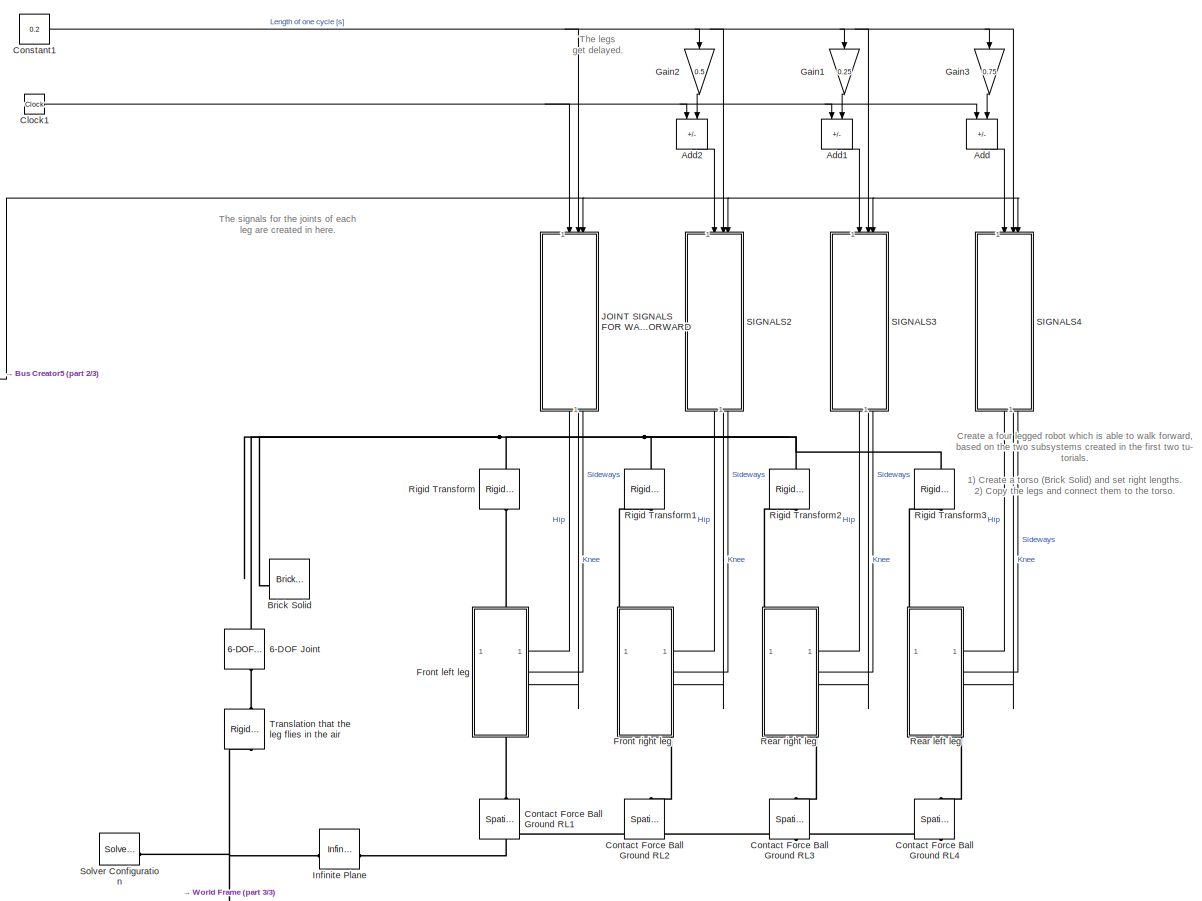
[diagram: root canvas - part 1/3, most of the canvas]
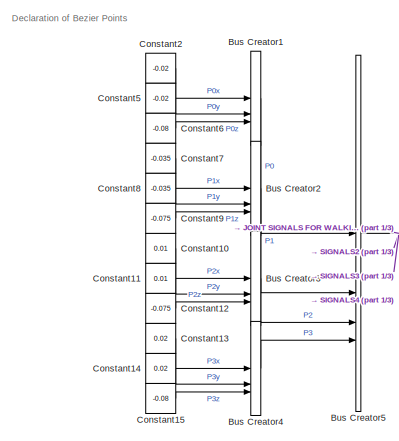
[diagram: root canvas - part 2/3, middle left region]
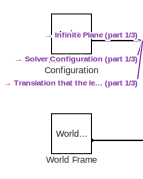
[diagram: root canvas - part 3/3, bottom left region]
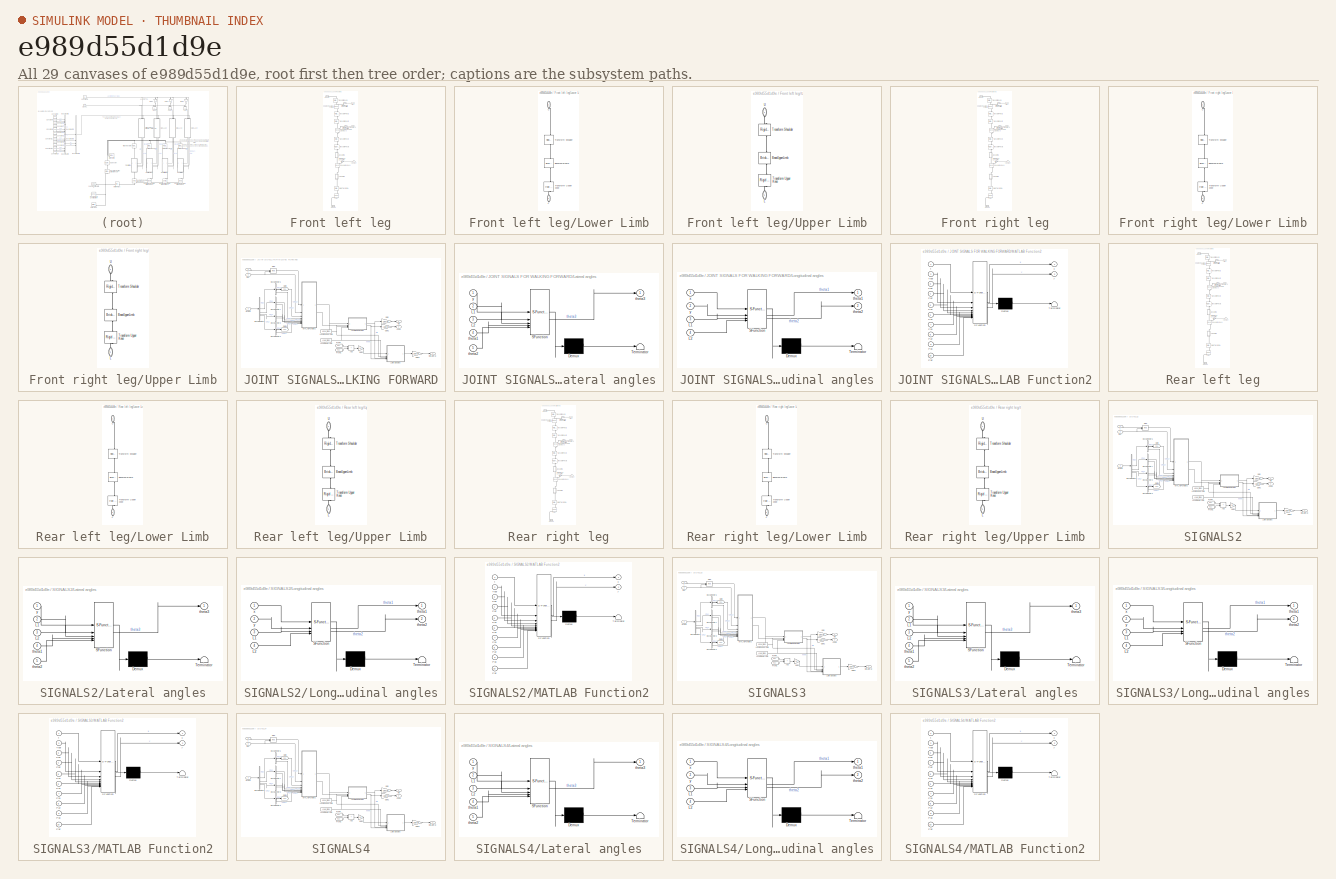
[diagram: thumbnail index - all 29 canvases of the model, root first then tree order]
MODEL slx_e989d55d1d9e
KIND model
CONFIG AbsTol = 1e-3
CONFIG EnableMultiTasking = on
CONFIG FixedStep = auto
CONFIG MaxStep = auto
CONFIG MinStep = auto
CONFIG RelTol = 1e-3
CONFIG SampleTimeConstraint = Unconstrained
CONFIG SolverName = ode23t
CONFIG StartTime = 0.0
CONFIG StopTime = 5
WORKSPACE source: mxarray member
WORKSPACE A = 0.4
WORKSPACE Critical_Velocity = 0.01
WORKSPACE Damping_Factor = 1000
WORKSPACE Dynamic_Friction = 0.5
WORKSPACE Heigth_brick: Simulink.Parameter (value not decoded)
WORKSPACE Heigth_ramp: Simulink.Parameter (value not decoded)
WORKSPACE Length_brick: Simulink.Parameter (value not decoded)
WORKSPACE Length_ramp: Simulink.Parameter (value not decoded)
WORKSPACE Length_torso: Simulink.Parameter (value not decoded)
WORKSPACE Lower_limbs: Simulink.Parameter (value not decoded)
WORKSPACE Static_Friction = 0.7
WORKSPACE Stiffnesscoefficient = 10000
WORKSPACE Transition_Region_Width = 0.02
WORKSPACE Upper_limbs: Simulink.Parameter (value not decoded)
WORKSPACE Width_brick: Simulink.Parameter (value not decoded)
WORKSPACE Width_ramp: Simulink.Parameter (value not decoded)
WORKSPACE Width_torso: Simulink.Parameter (value not decoded)
WORKSPACE f = 1.5
WORKSPACE max_Joint_change = 100
WORKSPACE r_foot: Simulink.Parameter (value not decoded)
WORKSPACE sampleTime: Simulink.Parameter (value not decoded)
WORKSPACE t_leg: Simulink.Parameter (value not decoded)
WORKSPACE theta: Simulink.Parameter (value not decoded)
WORKSPACE transferFunVal: Simulink.Parameter (value not decoded)
BLOCK [Reference] 6-DOF Joint  REF=sm_lib/Joints/6-DOF Joint
  NameLocation = right
  SourceBlock = sm_lib/Joints/6-DOF Joint
  SourceType = 6-DOF Joint
BLOCK [Sum] Add
  IconShape = rectangular
  Inputs = +-
  NameLocation = left
BLOCK [Sum] Add1
  IconShape = rectangular
  Inputs = +-
  NameLocation = left
BLOCK [Sum] Add2
  IconShape = rectangular
  Inputs = +-
  NameLocation = left
BLOCK [Reference] Brick Solid  REF=sm_lib/Body Elements/Brick Solid
  NameLocation = top
  SourceBlock = sm_lib/Body Elements/Brick Solid
  SourceType = Brick Solid
BLOCK [BusCreator] Bus Creator1
  DisplayOption = bar
  InheritFromInputs = on
  Inputs = 3
BLOCK [BusCreator] Bus Creator2
  DisplayOption = bar
  InheritFromInputs = on
  Inputs = 3
BLOCK [BusCreator] Bus Creator3
  DisplayOption = bar
  InheritFromInputs = on
  Inputs = 3
BLOCK [BusCreator] Bus Creator4
  DisplayOption = bar
  InheritFromInputs = on
  Inputs = 3
BLOCK [BusCreator] Bus Creator5
  DisplayOption = bar
  InheritFromInputs = on
  Inputs = 4
BLOCK [Clock] Clock1
BLOCK [Constant] Constant1
  Value = 0.2
BLOCK [Constant] Constant10
  Value = 0.01
BLOCK [Constant] Constant11
  Value = 0.01
BLOCK [Constant] Constant12
  Value = -0.075
BLOCK [Constant] Constant13
  Value = 0.02
BLOCK [Constant] Constant14
  Value = 0.02
BLOCK [Constant] Constant15
  Value = -0.08
BLOCK [Constant] Constant2
  Value = -0.02
BLOCK [Constant] Constant5
  Value = -0.02
BLOCK [Constant] Constant6
  Value = -0.08
BLOCK [Constant] Constant7
  Value = -0.035
BLOCK [Constant] Constant8
  Value = -0.035
BLOCK [Constant] Constant9
  Value = -0.075
BLOCK [Reference] Contact Force Ball Ground RL1  REF=sm_lib/Forces and
Torques/Spatial
Contact Force
  NameLocation = left
  SourceBlock = sm_lib/Forces and\nTorques/Spatial\nContact Force
  SourceType = Spatial\nContact Force
BLOCK [Reference] Contact Force Ball Ground RL2  REF=sm_lib/Forces and
Torques/Spatial
Contact Force
  NameLocation = left
  SourceBlock = sm_lib/Forces and\nTorques/Spatial\nContact Force
  SourceType = Spatial\nContact Force
BLOCK [Reference] Contact Force Ball Ground RL3  REF=sm_lib/Forces and
Torques/Spatial
Contact Force
  NameLocation = left
  SourceBlock = sm_lib/Forces and\nTorques/Spatial\nContact Force
  SourceType = Spatial\nContact Force
BLOCK [Reference] Contact Force Ball Ground RL4  REF=sm_lib/Forces and
Torques/Spatial
Contact Force
  NameLocation = left
  SourceBlock = sm_lib/Forces and\nTorques/Spatial\nContact Force
  SourceType = Spatial\nContact Force
BLOCK [SubSystem] Front left leg
  PortSchema = {"entries":[{"content":{"sides":[{"content":{},"type":"ConnectorPlacement.EquallySpacedRectSide","uuid":"4058ee2b-9772-4aa9-ad2c-dc188ae6aecd"},{"content":{"connectorIds":["In1","In2","In3"],"side":"RIGHT"},"type":"ConnectorPlacement.EquallySpacedRectSide","uuid":"c8f5ac60-63ea-4dfe-ad35-3ef8c1bdb1d6"},{"content":{"connectorIds":["LConn1"],"side":"TOP"},"type":"ConnectorPlacement.EquallySpacedRect...<+389ch>  <repeated x4 — deduplicated; at blocks: Front left leg, Front right leg, Rear left leg, Rear right leg>
BLOCK [Inport] Front left leg/<Hip>
  NameLocation = top
BLOCK [Inport] Front left leg/<Knee>
  NameLocation = top
  Port = 3
BLOCK [PMIOPort] Front left leg/Conn1
  Side = Left
BLOCK [PMIOPort] Front left leg/Conn2
  Port = 2
  Side = Right
BLOCK [Reference] Front left leg/Foot  REF=sm_lib/Body Elements/Spherical Solid
  NameLocation = right
  SourceBlock = sm_lib/Body Elements/Spherical Solid
  SourceType = Spherical Solid
BLOCK [SubSystem] Front left leg/Lower Limb
  NameLocation = left
BLOCK [Reference] Front left leg/Lower Limb/BaseLowerLimb  REF=sm_lib/Body Elements/Brick Solid
  NameLocation = left
  SourceBlock = sm_lib/Body Elements/Brick Solid
  SourceType = Brick Solid
BLOCK [PMIOPort] Front left leg/Lower Limb/L
  NameLocation = left
  Port = 2
  Side = Right
BLOCK [Reference] Front left leg/Lower Limb/Transform Shoulder  REF=sm_lib/Frames and
Transforms/Rigid
Transform
  NameLocation = left
  SourceBlock = sm_lib/Frames and\nTransforms/Rigid\nTransform
  SourceType = Rigid\nTransform
BLOCK [Reference] Front left leg/Lower Limb/Transform Upper Knee  REF=sm_lib/Frames and
Transforms/Rigid
Transform
  NameLocation = left
  SourceBlock = sm_lib/Frames and\nTransforms/Rigid\nTransform
  SourceType = Rigid\nTransform
BLOCK [PMIOPort] Front left leg/Lower Limb/U
  NameLocation = left
  Side = Left
BLOCK [Reference] Front left leg/Revolute Knee1  REF=sm_lib/Joints/Revolute Joint
  NameLocation = left
  SourceBlock = sm_lib/Joints/Revolute Joint
  SourceType = Revolute Joint
BLOCK [Reference] Front left leg/Revolute Shoulder Forward  REF=sm_lib/Joints/Revolute Joint
  NameLocation = left
  SourceBlock = sm_lib/Joints/Revolute Joint
  SourceType = Revolute Joint
BLOCK [Reference] Front left leg/Revolute Shoulder Sideways  REF=sm_lib/Joints/Revolute Joint
  NameLocation = left
  SourceBlock = sm_lib/Joints/Revolute Joint
  SourceType = Revolute Joint
BLOCK [Reference] Front left leg/Rigid Transform4  REF=sm_lib/Frames and
Transforms/Rigid
Transform
  NameLocation = left
  SourceBlock = sm_lib/Frames and\nTransforms/Rigid\nTransform
  SourceType = Rigid\nTransform
BLOCK [Inport] Front left leg/Sideways
  NameLocation = top
  Port = 2
BLOCK [Reference] Front left leg/Simulink-PS Converter  REF=nesl_utility/Simulink-PS
Converter
  NameLocation = top
  SourceBlock = nesl_utility/Simulink-PS\nConverter
  SourceType = Simulink-PS\nConverter
BLOCK [Reference] Front left leg/Simulink-PS Converter1  REF=nesl_utility/Simulink-PS
Converter
  NameLocation = top
  SourceBlock = nesl_utility/Simulink-PS\nConverter
  SourceType = Simulink-PS\nConverter
BLOCK [Reference] Front left leg/Simulink-PS Converter2  REF=nesl_utility/Simulink-PS
Converter
  NameLocation = top
  SourceBlock = nesl_utility/Simulink-PS\nConverter
  SourceType = Simulink-PS\nConverter
BLOCK [Reference] Front left leg/Transform Pivot1  REF=sm_lib/Frames and
Transforms/Rigid
Transform
  NameLocation = left
  SourceBlock = sm_lib/Frames and\nTransforms/Rigid\nTransform
  SourceType = Rigid\nTransform
BLOCK [Reference] Front left leg/Transform Pivot2  REF=sm_lib/Frames and
Transforms/Rigid
Transform
  NameLocation = left
  SourceBlock = sm_lib/Frames and\nTransforms/Rigid\nTransform
  SourceType = Rigid\nTransform
BLOCK [Reference] Front left leg/Transform Pivot3  REF=sm_lib/Frames and
Transforms/Rigid
Transform
  NameLocation = left
  SourceBlock = sm_lib/Frames and\nTransforms/Rigid\nTransform
  SourceType = Rigid\nTransform
BLOCK [Reference] Front left leg/Transform Pivot4  REF=sm_lib/Frames and
Transforms/Rigid
Transform
  NameLocation = left
  SourceBlock = sm_lib/Frames and\nTransforms/Rigid\nTransform
  SourceType = Rigid\nTransform
BLOCK [Reference] Front left leg/Transform Pivot5  REF=sm_lib/Frames and
Transforms/Rigid
Transform
  NameLocation = left
  SourceBlock = sm_lib/Frames and\nTransforms/Rigid\nTransform
  SourceType = Rigid\nTransform
BLOCK [SubSystem] Front left leg/Upper Limb
  NameLocation = left
BLOCK [Reference] Front left leg/Upper Limb/BaseUpperLimb  REF=sm_lib/Body Elements/Brick Solid
  NameLocation = left
  SourceBlock = sm_lib/Body Elements/Brick Solid
  SourceType = Brick Solid
BLOCK [PMIOPort] Front left leg/Upper Limb/L
  NameLocation = left
  Port = 2
  Side = Right
BLOCK [Reference] Front left leg/Upper Limb/Transform Shoulder  REF=sm_lib/Frames and
Transforms/Rigid
Transform
  NameLocation = left
  SourceBlock = sm_lib/Frames and\nTransforms/Rigid\nTransform
  SourceType = Rigid\nTransform
BLOCK [Reference] Front left leg/Upper Limb/Transform Upper Knee  REF=sm_lib/Frames and
Transforms/Rigid
Transform
  NameLocation = left
  SourceBlock = sm_lib/Frames and\nTransforms/Rigid\nTransform
  SourceType = Rigid\nTransform
BLOCK [PMIOPort] Front left leg/Upper Limb/U
  NameLocation = left
  Side = Left
BLOCK [SubSystem] Front right leg
BLOCK [Inport] Front right leg/<Hip>
  NameLocation = top
BLOCK [Inport] Front right leg/<Knee>
  NameLocation = top
  Port = 3
BLOCK [PMIOPort] Front right leg/Conn1
  Side = Left
BLOCK [PMIOPort] Front right leg/Conn2
  Port = 2
  Side = Right
BLOCK [Reference] Front right leg/Foot  REF=sm_lib/Body Elements/Spherical Solid
  NameLocation = right
  SourceBlock = sm_lib/Body Elements/Spherical Solid
  SourceType = Spherical Solid
BLOCK [SubSystem] Front right leg/Lower Limb
  NameLocation = left
BLOCK [Reference] Front right leg/Lower Limb/BaseLowerLimb  REF=sm_lib/Body Elements/Brick Solid
  NameLocation = left
  SourceBlock = sm_lib/Body Elements/Brick Solid
  SourceType = Brick Solid
BLOCK [PMIOPort] Front right leg/Lower Limb/L
  NameLocation = left
  Port = 2
  Side = Right
BLOCK [Reference] Front right leg/Lower Limb/Transform Shoulder  REF=sm_lib/Frames and
Transforms/Rigid
Transform
  NameLocation = left
  SourceBlock = sm_lib/Frames and\nTransforms/Rigid\nTransform
  SourceType = Rigid\nTransform
BLOCK [Reference] Front right leg/Lower Limb/Transform Upper Knee  REF=sm_lib/Frames and
Transforms/Rigid
Transform
  NameLocation = left
  SourceBlock = sm_lib/Frames and\nTransforms/Rigid\nTransform
  SourceType = Rigid\nTransform
BLOCK [PMIOPort] Front right leg/Lower Limb/U
  NameLocation = left
  Side = Left
BLOCK [Reference] Front right leg/Revolute Knee1  REF=sm_lib/Joints/Revolute Joint
  NameLocation = left
  SourceBlock = sm_lib/Joints/Revolute Joint
  SourceType = Revolute Joint
BLOCK [Reference] Front right leg/Revolute Shoulder Forward  REF=sm_lib/Joints/Revolute Joint
  NameLocation = left
  SourceBlock = sm_lib/Joints/Revolute Joint
  SourceType = Revolute Joint
BLOCK [Reference] Front right leg/Revolute Shoulder Sideways  REF=sm_lib/Joints/Revolute Joint
  NameLocation = left
  SourceBlock = sm_lib/Joints/Revolute Joint
  SourceType = Revolute Joint
BLOCK [Reference] Front right leg/Rigid Transform4  REF=sm_lib/Frames and
Transforms/Rigid
Transform
  NameLocation = left
  SourceBlock = sm_lib/Frames and\nTransforms/Rigid\nTransform
  SourceType = Rigid\nTransform
BLOCK [Inport] Front right leg/Sideways
  NameLocation = top
  Port = 2
BLOCK [Reference] Front right leg/Simulink-PS Converter  REF=nesl_utility/Simulink-PS
Converter
  NameLocation = top
  SourceBlock = nesl_utility/Simulink-PS\nConverter
  SourceType = Simulink-PS\nConverter
BLOCK [Reference] Front right leg/Simulink-PS Converter1  REF=nesl_utility/Simulink-PS
Converter
  NameLocation = top
  SourceBlock = nesl_utility/Simulink-PS\nConverter
  SourceType = Simulink-PS\nConverter
BLOCK [Reference] Front right leg/Simulink-PS Converter2  REF=nesl_utility/Simulink-PS
Converter
  NameLocation = top
  SourceBlock = nesl_utility/Simulink-PS\nConverter
  SourceType = Simulink-PS\nConverter
BLOCK [Reference] Front right leg/Transform Pivot1  REF=sm_lib/Frames and
Transforms/Rigid
Transform
  NameLocation = left
  SourceBlock = sm_lib/Frames and\nTransforms/Rigid\nTransform
  SourceType = Rigid\nTransform
BLOCK [Reference] Front right leg/Transform Pivot2  REF=sm_lib/Frames and
Transforms/Rigid
Transform
  NameLocation = left
  SourceBlock = sm_lib/Frames and\nTransforms/Rigid\nTransform
  SourceType = Rigid\nTransform
BLOCK [Reference] Front right leg/Transform Pivot3  REF=sm_lib/Frames and
Transforms/Rigid
Transform
  NameLocation = left
  SourceBlock = sm_lib/Frames and\nTransforms/Rigid\nTransform
  SourceType = Rigid\nTransform
BLOCK [Reference] Front right leg/Transform Pivot4  REF=sm_lib/Frames and
Transforms/Rigid
Transform
  NameLocation = left
  SourceBlock = sm_lib/Frames and\nTransforms/Rigid\nTransform
  SourceType = Rigid\nTransform
BLOCK [Reference] Front right leg/Transform Pivot5  REF=sm_lib/Frames and
Transforms/Rigid
Transform
  NameLocation = left
  SourceBlock = sm_lib/Frames and\nTransforms/Rigid\nTransform
  SourceType = Rigid\nTransform
BLOCK [SubSystem] Front right leg/Upper Limb
  NameLocation = left
BLOCK [Reference] Front right leg/Upper Limb/BaseUpperLimb  REF=sm_lib/Body Elements/Brick Solid
  NameLocation = left
  SourceBlock = sm_lib/Body Elements/Brick Solid
  SourceType = Brick Solid
BLOCK [PMIOPort] Front right leg/Upper Limb/L
  NameLocation = left
  Port = 2
  Side = Right
BLOCK [Reference] Front right leg/Upper Limb/Transform Shoulder  REF=sm_lib/Frames and
Transforms/Rigid
Transform
  NameLocation = left
  SourceBlock = sm_lib/Frames and\nTransforms/Rigid\nTransform
  SourceType = Rigid\nTransform
BLOCK [Reference] Front right leg/Upper Limb/Transform Upper Knee  REF=sm_lib/Frames and
Transforms/Rigid
Transform
  NameLocation = left
  SourceBlock = sm_lib/Frames and\nTransforms/Rigid\nTransform
  SourceType = Rigid\nTransform
BLOCK [PMIOPort] Front right leg/Upper Limb/U
  NameLocation = left
  Side = Left
BLOCK [Gain] Gain1
  Gain = 0.25
  NameLocation = left
BLOCK [Gain] Gain2
  Gain = 0.5
  NameLocation = left
BLOCK [Gain] Gain3
  Gain = 0.75
  NameLocation = left
BLOCK [Reference] Infinite Plane  REF=sm_lib/Curves and Surfaces/Infinite Plane
  SourceBlock = sm_lib/Curves and Surfaces/Infinite Plane
  SourceType = Infinite Plane
BLOCK [SubSystem] JOINT SIGNALS FOR WALKING FORWARD
  NameLocation = left
BLOCK [Sum] JOINT SIGNALS FOR WALKING FORWARD/Add
  IconShape = rectangular
BLOCK [Inport] JOINT SIGNALS FOR WALKING FORWARD/BPoints
  Port = 3
BLOCK [BusSelector] JOINT SIGNALS FOR WALKING FORWARD/Bus Selector5
  OutputSignals = P0,P1,P2,P3
BLOCK [BusSelector] JOINT SIGNALS FOR WALKING FORWARD/Bus Selector6
  OutputSignals = P0x,P0y,P0z
BLOCK [BusSelector] JOINT SIGNALS FOR WALKING FORWARD/Bus Selector7
  OutputSignals = P1x,P1z
BLOCK [BusSelector] JOINT SIGNALS FOR WALKING FORWARD/Bus Selector8
  OutputSignals = P2x,P2z
BLOCK [BusSelector] JOINT SIGNALS FOR WALKING FORWARD/Bus Selector9
  OutputSignals = P3x,P3y,P3z
BLOCK [From] JOINT SIGNALS FOR WALKING FORWARD/From
  GotoTag = P0y
BLOCK [From] JOINT SIGNALS FOR WALKING FORWARD/From1
  GotoTag = P3y
BLOCK [Gain] JOINT SIGNALS FOR WALKING FORWARD/Gain
  Gain = 180/pi
BLOCK [Gain] JOINT SIGNALS FOR WALKING FORWARD/Gain1
  Gain = -180/pi
BLOCK [Gain] JOINT SIGNALS FOR WALKING FORWARD/Gain2
  Gain = 0.5
BLOCK [Gain] JOINT SIGNALS FOR WALKING FORWARD/Gain3
  Gain = 180/pi
BLOCK [Goto] JOINT SIGNALS FOR WALKING FORWARD/Goto
  GotoTag = P0y
BLOCK [Goto] JOINT SIGNALS FOR WALKING FORWARD/Goto1
  GotoTag = P3y
BLOCK [Outport] JOINT SIGNALS FOR WALKING FORWARD/HipLateral
  Port = 3
BLOCK [SubSystem] JOINT SIGNALS FOR WALKING FORWARD/Lateral angles
  ErrorFcn = Stateflow.Translate.translate
  PermitHierarchicalResolution = ExplicitOnly
  SFBlockType = MATLAB Function
  TreatAsAtomicUnit = on
BLOCK [Demux] JOINT SIGNALS FOR WALKING FORWARD/Lateral angles/ Demux 
  Outputs = 1
BLOCK [S-Function] JOINT SIGNALS FOR WALKING FORWARD/Lateral angles/ SFunction 
  EnableBusSupport = on
  FunctionName = sf_sfun
  PortCounts = [5 2]
  SFcnIsStateOwnerBlock = off
  SFunctionDeploymentMode = off
  Tag = Stateflow S-Function 2
BLOCK [Terminator] JOINT SIGNALS FOR WALKING FORWARD/Lateral angles/ Terminator 
BLOCK [Inport] JOINT SIGNALS FOR WALKING FORWARD/Lateral angles/L1
  Port = 2
BLOCK [Inport] JOINT SIGNALS FOR WALKING FORWARD/Lateral angles/L2
  Port = 3
BLOCK [Inport] JOINT SIGNALS FOR WALKING FORWARD/Lateral angles/theta1
  Port = 4
BLOCK [Inport] JOINT SIGNALS FOR WALKING FORWARD/Lateral angles/theta2
  Port = 5
BLOCK [Outport] JOINT SIGNALS FOR WALKING FORWARD/Lateral angles/theta3
BLOCK [Inport] JOINT SIGNALS FOR WALKING FORWARD/Lateral angles/y
BLOCK [Constant] JOINT SIGNALS FOR WALKING FORWARD/Length lower Limb
  Value = Lower_limbs
BLOCK [Constant] JOINT SIGNALS FOR WALKING FORWARD/Length upper Limb
  Value = Upper_limbs
BLOCK [SubSystem] JOINT SIGNALS FOR WALKING FORWARD/Longitudinal angles
  ErrorFcn = Stateflow.Translate.translate
  PermitHierarchicalResolution = ExplicitOnly
  SFBlockType = MATLAB Function
  TreatAsAtomicUnit = on
BLOCK [Demux] JOINT SIGNALS FOR WALKING FORWARD/Longitudinal angles/ Demux 
  Outputs = 1
BLOCK [S-Function] JOINT SIGNALS FOR WALKING FORWARD/Longitudinal angles/ SFunction 
  EnableBusSupport = on
  FunctionName = sf_sfun
  PortCounts = [4 3]
  SFcnIsStateOwnerBlock = off
  SFunctionDeploymentMode = off
  Tag = Stateflow S-Function 81
BLOCK [Terminator] JOINT SIGNALS FOR WALKING FORWARD/Longitudinal angles/ Terminator 
BLOCK [Inport] JOINT SIGNALS FOR WALKING FORWARD/Longitudinal angles/L1
  Port = 3
BLOCK [Inport] JOINT SIGNALS FOR WALKING FORWARD/Longitudinal angles/L2
  Port = 4
BLOCK [Outport] JOINT SIGNALS FOR WALKING FORWARD/Longitudinal angles/theta1
BLOCK [Outport] JOINT SIGNALS FOR WALKING FORWARD/Longitudinal angles/theta2
  Port = 2
BLOCK [Inport] JOINT SIGNALS FOR WALKING FORWARD/Longitudinal angles/x
BLOCK [Inport] JOINT SIGNALS FOR WALKING FORWARD/Longitudinal angles/y
  Port = 2
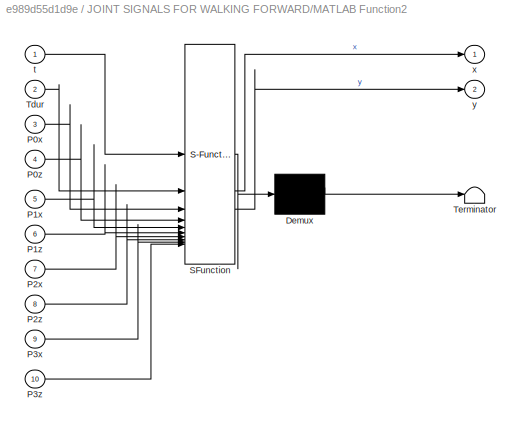
BLOCK [SubSystem] JOINT SIGNALS FOR WALKING FORWARD/MATLAB Function2
  ErrorFcn = Stateflow.Translate.translate
  PermitHierarchicalResolution = ExplicitOnly
  SFBlockType = MATLAB Function
  TreatAsAtomicUnit = on
BLOCK [Demux] JOINT SIGNALS FOR WALKING FORWARD/MATLAB Function2/ Demux 
  Outputs = 1
BLOCK [S-Function] JOINT SIGNALS FOR WALKING FORWARD/MATLAB Function2/ SFunction 
  EnableBusSupport = on
  FunctionName = sf_sfun
  PortCounts = [10 3]
  SFcnIsStateOwnerBlock = off
  SFunctionDeploymentMode = off
  Tag = Stateflow S-Function 94
BLOCK [Terminator] JOINT SIGNALS FOR WALKING FORWARD/MATLAB Function2/ Terminator 
BLOCK [Inport] JOINT SIGNALS FOR WALKING FORWARD/MATLAB Function2/P0x
  Port = 3
BLOCK [Inport] JOINT SIGNALS FOR WALKING FORWARD/MATLAB Function2/P0z
  Port = 4
BLOCK [Inport] JOINT SIGNALS FOR WALKING FORWARD/MATLAB Function2/P1x
  Port = 5
BLOCK [Inport] JOINT SIGNALS FOR WALKING FORWARD/MATLAB Function2/P1z
  Port = 6
BLOCK [Inport] JOINT SIGNALS FOR WALKING FORWARD/MATLAB Function2/P2x
  Port = 7
BLOCK [Inport] JOINT SIGNALS FOR WALKING FORWARD/MATLAB Function2/P2z
  Port = 8
BLOCK [Inport] JOINT SIGNALS FOR WALKING FORWARD/MATLAB Function2/P3x
  Port = 9
BLOCK [Inport] JOINT SIGNALS FOR WALKING FORWARD/MATLAB Function2/P3z
  Port = 10
BLOCK [Inport] JOINT SIGNALS FOR WALKING FORWARD/MATLAB Function2/Tdur
  Port = 2
BLOCK [Inport] JOINT SIGNALS FOR WALKING FORWARD/MATLAB Function2/t
BLOCK [Outport] JOINT SIGNALS FOR WALKING FORWARD/MATLAB Function2/x
BLOCK [Outport] JOINT SIGNALS FOR WALKING FORWARD/MATLAB Function2/y
  Port = 2
BLOCK [Math] JOINT SIGNALS FOR WALKING FORWARD/Mod
  Operator = mod
BLOCK [Outport] JOINT SIGNALS FOR WALKING FORWARD/hip
BLOCK [Outport] JOINT SIGNALS FOR WALKING FORWARD/knee
  Port = 2
BLOCK [Inport] JOINT SIGNALS FOR WALKING FORWARD/t
BLOCK [Inport] JOINT SIGNALS FOR WALKING FORWARD/tdur
  Port = 2
BLOCK [Reference] Mechanism Configuration  REF=sm_lib/Utilities/Mechanism
Configuration
  SourceBlock = sm_lib/Utilities/Mechanism\nConfiguration
  SourceType = Mechanism\nConfiguration
BLOCK [SubSystem] Rear left leg
BLOCK [Inport] Rear left leg/<Hip>
  NameLocation = top
BLOCK [Inport] Rear left leg/<Knee>
  NameLocation = top
  Port = 3
BLOCK [PMIOPort] Rear left leg/Conn1
  Side = Left
BLOCK [PMIOPort] Rear left leg/Conn2
  Port = 2
  Side = Right
BLOCK [Reference] Rear left leg/Foot  REF=sm_lib/Body Elements/Spherical Solid
  NameLocation = right
  SourceBlock = sm_lib/Body Elements/Spherical Solid
  SourceType = Spherical Solid
BLOCK [SubSystem] Rear left leg/Lower Limb
  NameLocation = left
BLOCK [Reference] Rear left leg/Lower Limb/BaseLowerLimb  REF=sm_lib/Body Elements/Brick Solid
  NameLocation = left
  SourceBlock = sm_lib/Body Elements/Brick Solid
  SourceType = Brick Solid
BLOCK [PMIOPort] Rear left leg/Lower Limb/L
  NameLocation = left
  Port = 2
  Side = Right
BLOCK [Reference] Rear left leg/Lower Limb/Transform Shoulder  REF=sm_lib/Frames and
Transforms/Rigid
Transform
  NameLocation = left
  SourceBlock = sm_lib/Frames and\nTransforms/Rigid\nTransform
  SourceType = Rigid\nTransform
BLOCK [Reference] Rear left leg/Lower Limb/Transform Upper Knee  REF=sm_lib/Frames and
Transforms/Rigid
Transform
  NameLocation = left
  SourceBlock = sm_lib/Frames and\nTransforms/Rigid\nTransform
  SourceType = Rigid\nTransform
BLOCK [PMIOPort] Rear left leg/Lower Limb/U
  NameLocation = left
  Side = Left
BLOCK [Reference] Rear left leg/Revolute Knee1  REF=sm_lib/Joints/Revolute Joint
  NameLocation = left
  SourceBlock = sm_lib/Joints/Revolute Joint
  SourceType = Revolute Joint
BLOCK [Reference] Rear left leg/Revolute Shoulder Forward  REF=sm_lib/Joints/Revolute Joint
  NameLocation = left
  SourceBlock = sm_lib/Joints/Revolute Joint
  SourceType = Revolute Joint
BLOCK [Reference] Rear left leg/Revolute Shoulder Sideways  REF=sm_lib/Joints/Revolute Joint
  NameLocation = left
  SourceBlock = sm_lib/Joints/Revolute Joint
  SourceType = Revolute Joint
BLOCK [Reference] Rear left leg/Rigid Transform4  REF=sm_lib/Frames and
Transforms/Rigid
Transform
  NameLocation = left
  SourceBlock = sm_lib/Frames and\nTransforms/Rigid\nTransform
  SourceType = Rigid\nTransform
BLOCK [Inport] Rear left leg/Sideways
  NameLocation = top
  Port = 2
BLOCK [Reference] Rear left leg/Simulink-PS Converter  REF=nesl_utility/Simulink-PS
Converter
  NameLocation = top
  SourceBlock = nesl_utility/Simulink-PS\nConverter
  SourceType = Simulink-PS\nConverter
BLOCK [Reference] Rear left leg/Simulink-PS Converter1  REF=nesl_utility/Simulink-PS
Converter
  NameLocation = top
  SourceBlock = nesl_utility/Simulink-PS\nConverter
  SourceType = Simulink-PS\nConverter
BLOCK [Reference] Rear left leg/Simulink-PS Converter2  REF=nesl_utility/Simulink-PS
Converter
  NameLocation = top
  SourceBlock = nesl_utility/Simulink-PS\nConverter
  SourceType = Simulink-PS\nConverter
BLOCK [Reference] Rear left leg/Transform Pivot1  REF=sm_lib/Frames and
Transforms/Rigid
Transform
  NameLocation = left
  SourceBlock = sm_lib/Frames and\nTransforms/Rigid\nTransform
  SourceType = Rigid\nTransform
BLOCK [Reference] Rear left leg/Transform Pivot2  REF=sm_lib/Frames and
Transforms/Rigid
Transform
  NameLocation = left
  SourceBlock = sm_lib/Frames and\nTransforms/Rigid\nTransform
  SourceType = Rigid\nTransform
BLOCK [Reference] Rear left leg/Transform Pivot3  REF=sm_lib/Frames and
Transforms/Rigid
Transform
  NameLocation = left
  SourceBlock = sm_lib/Frames and\nTransforms/Rigid\nTransform
  SourceType = Rigid\nTransform
BLOCK [Reference] Rear left leg/Transform Pivot4  REF=sm_lib/Frames and
Transforms/Rigid
Transform
  NameLocation = left
  SourceBlock = sm_lib/Frames and\nTransforms/Rigid\nTransform
  SourceType = Rigid\nTransform
BLOCK [Reference] Rear left leg/Transform Pivot5  REF=sm_lib/Frames and
Transforms/Rigid
Transform
  NameLocation = left
  SourceBlock = sm_lib/Frames and\nTransforms/Rigid\nTransform
  SourceType = Rigid\nTransform
BLOCK [SubSystem] Rear left leg/Upper Limb
  NameLocation = left
BLOCK [Reference] Rear left leg/Upper Limb/BaseUpperLimb  REF=sm_lib/Body Elements/Brick Solid
  NameLocation = left
  SourceBlock = sm_lib/Body Elements/Brick Solid
  SourceType = Brick Solid
BLOCK [PMIOPort] Rear left leg/Upper Limb/L
  NameLocation = left
  Port = 2
  Side = Right
BLOCK [Reference] Rear left leg/Upper Limb/Transform Shoulder  REF=sm_lib/Frames and
Transforms/Rigid
Transform
  NameLocation = left
  SourceBlock = sm_lib/Frames and\nTransforms/Rigid\nTransform
  SourceType = Rigid\nTransform
BLOCK [Reference] Rear left leg/Upper Limb/Transform Upper Knee  REF=sm_lib/Frames and
Transforms/Rigid
Transform
  NameLocation = left
  SourceBlock = sm_lib/Frames and\nTransforms/Rigid\nTransform
  SourceType = Rigid\nTransform
BLOCK [PMIOPort] Rear left leg/Upper Limb/U
  NameLocation = left
  Side = Left
BLOCK [SubSystem] Rear right leg
BLOCK [Inport] Rear right leg/<Hip>
  NameLocation = top
BLOCK [Inport] Rear right leg/<Knee>
  NameLocation = top
  Port = 3
BLOCK [PMIOPort] Rear right leg/Conn1
  Side = Left
BLOCK [PMIOPort] Rear right leg/Conn2
  Port = 2
  Side = Right
BLOCK [Reference] Rear right leg/Foot  REF=sm_lib/Body Elements/Spherical Solid
  NameLocation = right
  SourceBlock = sm_lib/Body Elements/Spherical Solid
  SourceType = Spherical Solid
BLOCK [SubSystem] Rear right leg/Lower Limb
  NameLocation = left
BLOCK [Reference] Rear right leg/Lower Limb/BaseLowerLimb  REF=sm_lib/Body Elements/Brick Solid
  NameLocation = left
  SourceBlock = sm_lib/Body Elements/Brick Solid
  SourceType = Brick Solid
BLOCK [PMIOPort] Rear right leg/Lower Limb/L
  NameLocation = left
  Port = 2
  Side = Right
BLOCK [Reference] Rear right leg/Lower Limb/Transform Shoulder  REF=sm_lib/Frames and
Transforms/Rigid
Transform
  NameLocation = left
  SourceBlock = sm_lib/Frames and\nTransforms/Rigid\nTransform
  SourceType = Rigid\nTransform
BLOCK [Reference] Rear right leg/Lower Limb/Transform Upper Knee  REF=sm_lib/Frames and
Transforms/Rigid
Transform
  NameLocation = left
  SourceBlock = sm_lib/Frames and\nTransforms/Rigid\nTransform
  SourceType = Rigid\nTransform
BLOCK [PMIOPort] Rear right leg/Lower Limb/U
  NameLocation = left
  Side = Left
BLOCK [Reference] Rear right leg/Revolute Knee1  REF=sm_lib/Joints/Revolute Joint
  NameLocation = left
  SourceBlock = sm_lib/Joints/Revolute Joint
  SourceType = Revolute Joint
BLOCK [Reference] Rear right leg/Revolute Shoulder Forward  REF=sm_lib/Joints/Revolute Joint
  NameLocation = left
  SourceBlock = sm_lib/Joints/Revolute Joint
  SourceType = Revolute Joint
BLOCK [Reference] Rear right leg/Revolute Shoulder Sideways  REF=sm_lib/Joints/Revolute Joint
  NameLocation = left
  SourceBlock = sm_lib/Joints/Revolute Joint
  SourceType = Revolute Joint
BLOCK [Reference] Rear right leg/Rigid Transform4  REF=sm_lib/Frames and
Transforms/Rigid
Transform
  NameLocation = left
  SourceBlock = sm_lib/Frames and\nTransforms/Rigid\nTransform
  SourceType = Rigid\nTransform
BLOCK [Inport] Rear right leg/Sideways
  NameLocation = top
  Port = 2
BLOCK [Reference] Rear right leg/Simulink-PS Converter  REF=nesl_utility/Simulink-PS
Converter
  NameLocation = top
  SourceBlock = nesl_utility/Simulink-PS\nConverter
  SourceType = Simulink-PS\nConverter
BLOCK [Reference] Rear right leg/Simulink-PS Converter1  REF=nesl_utility/Simulink-PS
Converter
  NameLocation = top
  SourceBlock = nesl_utility/Simulink-PS\nConverter
  SourceType = Simulink-PS\nConverter
BLOCK [Reference] Rear right leg/Simulink-PS Converter2  REF=nesl_utility/Simulink-PS
Converter
  NameLocation = top
  SourceBlock = nesl_utility/Simulink-PS\nConverter
  SourceType = Simulink-PS\nConverter
BLOCK [Reference] Rear right leg/Transform Pivot1  REF=sm_lib/Frames and
Transforms/Rigid
Transform
  NameLocation = left
  SourceBlock = sm_lib/Frames and\nTransforms/Rigid\nTransform
  SourceType = Rigid\nTransform
BLOCK [Reference] Rear right leg/Transform Pivot2  REF=sm_lib/Frames and
Transforms/Rigid
Transform
  NameLocation = left
  SourceBlock = sm_lib/Frames and\nTransforms/Rigid\nTransform
  SourceType = Rigid\nTransform
BLOCK [Reference] Rear right leg/Transform Pivot3  REF=sm_lib/Frames and
Transforms/Rigid
Transform
  NameLocation = left
  SourceBlock = sm_lib/Frames and\nTransforms/Rigid\nTransform
  SourceType = Rigid\nTransform
BLOCK [Reference] Rear right leg/Transform Pivot4  REF=sm_lib/Frames and
Transforms/Rigid
Transform
  NameLocation = left
  SourceBlock = sm_lib/Frames and\nTransforms/Rigid\nTransform
  SourceType = Rigid\nTransform
BLOCK [Reference] Rear right leg/Transform Pivot5  REF=sm_lib/Frames and
Transforms/Rigid
Transform
  NameLocation = left
  SourceBlock = sm_lib/Frames and\nTransforms/Rigid\nTransform
  SourceType = Rigid\nTransform
BLOCK [SubSystem] Rear right leg/Upper Limb
  NameLocation = left
BLOCK [Reference] Rear right leg/Upper Limb/BaseUpperLimb  REF=sm_lib/Body Elements/Brick Solid
  NameLocation = left
  SourceBlock = sm_lib/Body Elements/Brick Solid
  SourceType = Brick Solid
BLOCK [PMIOPort] Rear right leg/Upper Limb/L
  NameLocation = left
  Port = 2
  Side = Right
BLOCK [Reference] Rear right leg/Upper Limb/Transform Shoulder  REF=sm_lib/Frames and
Transforms/Rigid
Transform
  NameLocation = left
  SourceBlock = sm_lib/Frames and\nTransforms/Rigid\nTransform
  SourceType = Rigid\nTransform
BLOCK [Reference] Rear right leg/Upper Limb/Transform Upper Knee  REF=sm_lib/Frames and
Transforms/Rigid
Transform
  NameLocation = left
  SourceBlock = sm_lib/Frames and\nTransforms/Rigid\nTransform
  SourceType = Rigid\nTransform
BLOCK [PMIOPort] Rear right leg/Upper Limb/U
  NameLocation = left
  Side = Left
BLOCK [Reference] Rigid Transform  REF=sm_lib/Frames and
Transforms/Rigid
Transform
  NameLocation = left
  SourceBlock = sm_lib/Frames and\nTransforms/Rigid\nTransform
  SourceType = Rigid\nTransform
BLOCK [Reference] Rigid Transform1  REF=sm_lib/Frames and
Transforms/Rigid
Transform
  NameLocation = left
  SourceBlock = sm_lib/Frames and\nTransforms/Rigid\nTransform
  SourceType = Rigid\nTransform
BLOCK [Reference] Rigid Transform2  REF=sm_lib/Frames and
Transforms/Rigid
Transform
  NameLocation = left
  SourceBlock = sm_lib/Frames and\nTransforms/Rigid\nTransform
  SourceType = Rigid\nTransform
BLOCK [Reference] Rigid Transform3  REF=sm_lib/Frames and
Transforms/Rigid
Transform
  NameLocation = left
  SourceBlock = sm_lib/Frames and\nTransforms/Rigid\nTransform
  SourceType = Rigid\nTransform
BLOCK [SubSystem] SIGNALS2
  NameLocation = left
BLOCK [Sum] SIGNALS2/Add
  IconShape = rectangular
BLOCK [Inport] SIGNALS2/BPoints
  Port = 3
BLOCK [BusSelector] SIGNALS2/Bus Selector5
  OutputSignals = P0,P1,P2,P3
BLOCK [BusSelector] SIGNALS2/Bus Selector6
  OutputSignals = P0x,P0y,P0z
BLOCK [BusSelector] SIGNALS2/Bus Selector7
  OutputSignals = P1x,P1z
BLOCK [BusSelector] SIGNALS2/Bus Selector8
  OutputSignals = P2x,P2z
BLOCK [BusSelector] SIGNALS2/Bus Selector9
  OutputSignals = P3x,P3y,P3z
BLOCK [From] SIGNALS2/From
  GotoTag = P0y
BLOCK [From] SIGNALS2/From1
  GotoTag = P3y
BLOCK [Gain] SIGNALS2/Gain
  Gain = 180/pi
BLOCK [Gain] SIGNALS2/Gain1
  Gain = -180/pi
BLOCK [Gain] SIGNALS2/Gain2
  Gain = 0.5
BLOCK [Gain] SIGNALS2/Gain3
  Gain = 180/pi
BLOCK [Goto] SIGNALS2/Goto
  GotoTag = P0y
BLOCK [Goto] SIGNALS2/Goto1
  GotoTag = P3y
BLOCK [Outport] SIGNALS2/HipLateral
  Port = 3
BLOCK [SubSystem] SIGNALS2/Lateral angles
  ErrorFcn = Stateflow.Translate.translate
  PermitHierarchicalResolution = ExplicitOnly
  SFBlockType = MATLAB Function
  TreatAsAtomicUnit = on
BLOCK [Demux] SIGNALS2/Lateral angles/ Demux 
  Outputs = 1
BLOCK [S-Function] SIGNALS2/Lateral angles/ SFunction 
  EnableBusSupport = on
  FunctionName = sf_sfun
  PortCounts = [5 2]
  SFcnIsStateOwnerBlock = off
  SFunctionDeploymentMode = off
  Tag = Stateflow S-Function 1
BLOCK [Terminator] SIGNALS2/Lateral angles/ Terminator 
BLOCK [Inport] SIGNALS2/Lateral angles/L1
  Port = 2
BLOCK [Inport] SIGNALS2/Lateral angles/L2
  Port = 3
BLOCK [Inport] SIGNALS2/Lateral angles/theta1
  Port = 4
BLOCK [Inport] SIGNALS2/Lateral angles/theta2
  Port = 5
BLOCK [Outport] SIGNALS2/Lateral angles/theta3
BLOCK [Inport] SIGNALS2/Lateral angles/y
BLOCK [Constant] SIGNALS2/Length lower Limb
  Value = Lower_limbs
BLOCK [Constant] SIGNALS2/Length upper Limb
  Value = Upper_limbs
BLOCK [SubSystem] SIGNALS2/Longitudinal angles
  ErrorFcn = Stateflow.Translate.translate
  PermitHierarchicalResolution = ExplicitOnly
  SFBlockType = MATLAB Function
  TreatAsAtomicUnit = on
BLOCK [Demux] SIGNALS2/Longitudinal angles/ Demux 
  Outputs = 1
BLOCK [S-Function] SIGNALS2/Longitudinal angles/ SFunction 
  EnableBusSupport = on
  FunctionName = sf_sfun
  PortCounts = [4 3]
  SFcnIsStateOwnerBlock = off
  SFunctionDeploymentMode = off
  Tag = Stateflow S-Function 3
BLOCK [Terminator] SIGNALS2/Longitudinal angles/ Terminator 
BLOCK [Inport] SIGNALS2/Longitudinal angles/L1
  Port = 3
BLOCK [Inport] SIGNALS2/Longitudinal angles/L2
  Port = 4
BLOCK [Outport] SIGNALS2/Longitudinal angles/theta1
BLOCK [Outport] SIGNALS2/Longitudinal angles/theta2
  Port = 2
BLOCK [Inport] SIGNALS2/Longitudinal angles/x
BLOCK [Inport] SIGNALS2/Longitudinal angles/y
  Port = 2
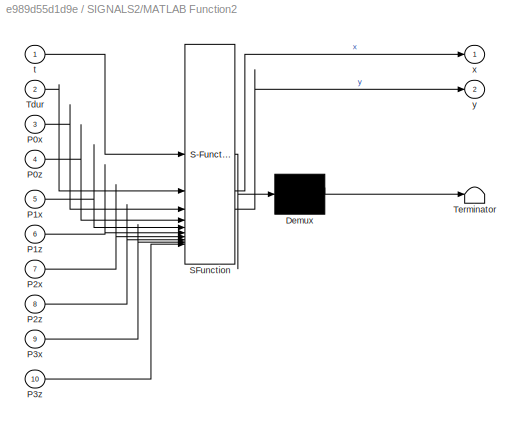
BLOCK [SubSystem] SIGNALS2/MATLAB Function2
  ErrorFcn = Stateflow.Translate.translate
  PermitHierarchicalResolution = ExplicitOnly
  SFBlockType = MATLAB Function
  TreatAsAtomicUnit = on
BLOCK [Demux] SIGNALS2/MATLAB Function2/ Demux 
  Outputs = 1
BLOCK [S-Function] SIGNALS2/MATLAB Function2/ SFunction 
  EnableBusSupport = on
  FunctionName = sf_sfun
  PortCounts = [10 3]
  SFcnIsStateOwnerBlock = off
  SFunctionDeploymentMode = off
  Tag = Stateflow S-Function 4
BLOCK [Terminator] SIGNALS2/MATLAB Function2/ Terminator 
BLOCK [Inport] SIGNALS2/MATLAB Function2/P0x
  Port = 3
BLOCK [Inport] SIGNALS2/MATLAB Function2/P0z
  Port = 4
BLOCK [Inport] SIGNALS2/MATLAB Function2/P1x
  Port = 5
BLOCK [Inport] SIGNALS2/MATLAB Function2/P1z
  Port = 6
BLOCK [Inport] SIGNALS2/MATLAB Function2/P2x
  Port = 7
BLOCK [Inport] SIGNALS2/MATLAB Function2/P2z
  Port = 8
BLOCK [Inport] SIGNALS2/MATLAB Function2/P3x
  Port = 9
BLOCK [Inport] SIGNALS2/MATLAB Function2/P3z
  Port = 10
BLOCK [Inport] SIGNALS2/MATLAB Function2/Tdur
  Port = 2
BLOCK [Inport] SIGNALS2/MATLAB Function2/t
BLOCK [Outport] SIGNALS2/MATLAB Function2/x
BLOCK [Outport] SIGNALS2/MATLAB Function2/y
  Port = 2
BLOCK [Math] SIGNALS2/Mod
  Operator = mod
BLOCK [Outport] SIGNALS2/hip
BLOCK [Outport] SIGNALS2/knee
  Port = 2
BLOCK [Inport] SIGNALS2/t
BLOCK [Inport] SIGNALS2/tdur
  Port = 2
BLOCK [SubSystem] SIGNALS3
  NameLocation = left
BLOCK [Sum] SIGNALS3/Add
  IconShape = rectangular
BLOCK [Inport] SIGNALS3/BPoints
  Port = 3
BLOCK [BusSelector] SIGNALS3/Bus Selector5
  OutputSignals = P0,P1,P2,P3
BLOCK [BusSelector] SIGNALS3/Bus Selector6
  OutputSignals = P0x,P0y,P0z
BLOCK [BusSelector] SIGNALS3/Bus Selector7
  OutputSignals = P1x,P1z
BLOCK [BusSelector] SIGNALS3/Bus Selector8
  OutputSignals = P2x,P2z
BLOCK [BusSelector] SIGNALS3/Bus Selector9
  OutputSignals = P3x,P3y,P3z
BLOCK [From] SIGNALS3/From
  GotoTag = P0y
BLOCK [From] SIGNALS3/From1
  GotoTag = P3y
BLOCK [Gain] SIGNALS3/Gain
  Gain = 180/pi
BLOCK [Gain] SIGNALS3/Gain1
  Gain = -180/pi
BLOCK [Gain] SIGNALS3/Gain2
  Gain = 0.5
BLOCK [Gain] SIGNALS3/Gain3
  Gain = 180/pi
BLOCK [Goto] SIGNALS3/Goto
  GotoTag = P0y
BLOCK [Goto] SIGNALS3/Goto1
  GotoTag = P3y
BLOCK [Outport] SIGNALS3/HipLateral
  Port = 3
BLOCK [SubSystem] SIGNALS3/Lateral angles
  ErrorFcn = Stateflow.Translate.translate
  PermitHierarchicalResolution = ExplicitOnly
  SFBlockType = MATLAB Function
  TreatAsAtomicUnit = on
BLOCK [Demux] SIGNALS3/Lateral angles/ Demux 
  Outputs = 1
BLOCK [S-Function] SIGNALS3/Lateral angles/ SFunction 
  EnableBusSupport = on
  FunctionName = sf_sfun
  PortCounts = [5 2]
  SFcnIsStateOwnerBlock = off
  SFunctionDeploymentMode = off
  Tag = Stateflow S-Function 5
BLOCK [Terminator] SIGNALS3/Lateral angles/ Terminator 
BLOCK [Inport] SIGNALS3/Lateral angles/L1
  Port = 2
BLOCK [Inport] SIGNALS3/Lateral angles/L2
  Port = 3
BLOCK [Inport] SIGNALS3/Lateral angles/theta1
  Port = 4
BLOCK [Inport] SIGNALS3/Lateral angles/theta2
  Port = 5
BLOCK [Outport] SIGNALS3/Lateral angles/theta3
BLOCK [Inport] SIGNALS3/Lateral angles/y
BLOCK [Constant] SIGNALS3/Length lower Limb
  Value = Lower_limbs
BLOCK [Constant] SIGNALS3/Length upper Limb
  Value = Upper_limbs
BLOCK [SubSystem] SIGNALS3/Longitudinal angles
  ErrorFcn = Stateflow.Translate.translate
  PermitHierarchicalResolution = ExplicitOnly
  SFBlockType = MATLAB Function
  TreatAsAtomicUnit = on
BLOCK [Demux] SIGNALS3/Longitudinal angles/ Demux 
  Outputs = 1
BLOCK [S-Function] SIGNALS3/Longitudinal angles/ SFunction 
  EnableBusSupport = on
  FunctionName = sf_sfun
  PortCounts = [4 3]
  SFcnIsStateOwnerBlock = off
  SFunctionDeploymentMode = off
  Tag = Stateflow S-Function 6
BLOCK [Terminator] SIGNALS3/Longitudinal angles/ Terminator 
BLOCK [Inport] SIGNALS3/Longitudinal angles/L1
  Port = 3
BLOCK [Inport] SIGNALS3/Longitudinal angles/L2
  Port = 4
BLOCK [Outport] SIGNALS3/Longitudinal angles/theta1
BLOCK [Outport] SIGNALS3/Longitudinal angles/theta2
  Port = 2
BLOCK [Inport] SIGNALS3/Longitudinal angles/x
BLOCK [Inport] SIGNALS3/Longitudinal angles/y
  Port = 2
BLOCK [SubSystem] SIGNALS3/MATLAB Function2
  ErrorFcn = Stateflow.Translate.translate
  PermitHierarchicalResolution = ExplicitOnly
  SFBlockType = MATLAB Function
  TreatAsAtomicUnit = on
BLOCK [Demux] SIGNALS3/MATLAB Function2/ Demux 
  Outputs = 1
BLOCK [S-Function] SIGNALS3/MATLAB Function2/ SFunction 
  EnableBusSupport = on
  FunctionName = sf_sfun
  PortCounts = [10 3]
  SFcnIsStateOwnerBlock = off
  SFunctionDeploymentMode = off
  Tag = Stateflow S-Function 7
BLOCK [Terminator] SIGNALS3/MATLAB Function2/ Terminator 
BLOCK [Inport] SIGNALS3/MATLAB Function2/P0x
  Port = 3
BLOCK [Inport] SIGNALS3/MATLAB Function2/P0z
  Port = 4
BLOCK [Inport] SIGNALS3/MATLAB Function2/P1x
  Port = 5
BLOCK [Inport] SIGNALS3/MATLAB Function2/P1z
  Port = 6
BLOCK [Inport] SIGNALS3/MATLAB Function2/P2x
  Port = 7
BLOCK [Inport] SIGNALS3/MATLAB Function2/P2z
  Port = 8
BLOCK [Inport] SIGNALS3/MATLAB Function2/P3x
  Port = 9
BLOCK [Inport] SIGNALS3/MATLAB Function2/P3z
  Port = 10
BLOCK [Inport] SIGNALS3/MATLAB Function2/Tdur
  Port = 2
BLOCK [Inport] SIGNALS3/MATLAB Function2/t
BLOCK [Outport] SIGNALS3/MATLAB Function2/x
BLOCK [Outport] SIGNALS3/MATLAB Function2/y
  Port = 2
BLOCK [Math] SIGNALS3/Mod
  Operator = mod
BLOCK [Outport] SIGNALS3/hip
BLOCK [Outport] SIGNALS3/knee
  Port = 2
BLOCK [Inport] SIGNALS3/t
BLOCK [Inport] SIGNALS3/tdur
  Port = 2
BLOCK [SubSystem] SIGNALS4
  NameLocation = left
BLOCK [Sum] SIGNALS4/Add
  IconShape = rectangular
BLOCK [Inport] SIGNALS4/BPoints
  Port = 3
BLOCK [BusSelector] SIGNALS4/Bus Selector5
  OutputSignals = P0,P1,P2,P3
BLOCK [BusSelector] SIGNALS4/Bus Selector6
  OutputSignals = P0x,P0y,P0z
BLOCK [BusSelector] SIGNALS4/Bus Selector7
  OutputSignals = P1x,P1z
BLOCK [BusSelector] SIGNALS4/Bus Selector8
  OutputSignals = P2x,P2z
BLOCK [BusSelector] SIGNALS4/Bus Selector9
  OutputSignals = P3x,P3y,P3z
BLOCK [From] SIGNALS4/From
  GotoTag = P0y
BLOCK [From] SIGNALS4/From1
  GotoTag = P3y
BLOCK [Gain] SIGNALS4/Gain
  Gain = 180/pi
BLOCK [Gain] SIGNALS4/Gain1
  Gain = -180/pi
BLOCK [Gain] SIGNALS4/Gain2
  Gain = 0.5
BLOCK [Gain] SIGNALS4/Gain3
  Gain = 180/pi
BLOCK [Goto] SIGNALS4/Goto
  GotoTag = P0y
BLOCK [Goto] SIGNALS4/Goto1
  GotoTag = P3y
BLOCK [Outport] SIGNALS4/HipLateral
  Port = 3
BLOCK [SubSystem] SIGNALS4/Lateral angles
  ErrorFcn = Stateflow.Translate.translate
  PermitHierarchicalResolution = ExplicitOnly
  SFBlockType = MATLAB Function
  TreatAsAtomicUnit = on
BLOCK [Demux] SIGNALS4/Lateral angles/ Demux 
  Outputs = 1
BLOCK [S-Function] SIGNALS4/Lateral angles/ SFunction 
  EnableBusSupport = on
  FunctionName = sf_sfun
  PortCounts = [5 2]
  SFcnIsStateOwnerBlock = off
  SFunctionDeploymentMode = off
  Tag = Stateflow S-Function 8
BLOCK [Terminator] SIGNALS4/Lateral angles/ Terminator 
BLOCK [Inport] SIGNALS4/Lateral angles/L1
  Port = 2
BLOCK [Inport] SIGNALS4/Lateral angles/L2
  Port = 3
BLOCK [Inport] SIGNALS4/Lateral angles/theta1
  Port = 4
BLOCK [Inport] SIGNALS4/Lateral angles/theta2
  Port = 5
BLOCK [Outport] SIGNALS4/Lateral angles/theta3
BLOCK [Inport] SIGNALS4/Lateral angles/y
BLOCK [Constant] SIGNALS4/Length lower Limb
  Value = Lower_limbs
BLOCK [Constant] SIGNALS4/Length upper Limb
  Value = Upper_limbs
BLOCK [SubSystem] SIGNALS4/Longitudinal angles
  ErrorFcn = Stateflow.Translate.translate
  PermitHierarchicalResolution = ExplicitOnly
  SFBlockType = MATLAB Function
  TreatAsAtomicUnit = on
BLOCK [Demux] SIGNALS4/Longitudinal angles/ Demux 
  Outputs = 1
BLOCK [S-Function] SIGNALS4/Longitudinal angles/ SFunction 
  EnableBusSupport = on
  FunctionName = sf_sfun
  PortCounts = [4 3]
  SFcnIsStateOwnerBlock = off
  SFunctionDeploymentMode = off
  Tag = Stateflow S-Function 9
BLOCK [Terminator] SIGNALS4/Longitudinal angles/ Terminator 
BLOCK [Inport] SIGNALS4/Longitudinal angles/L1
  Port = 3
BLOCK [Inport] SIGNALS4/Longitudinal angles/L2
  Port = 4
BLOCK [Outport] SIGNALS4/Longitudinal angles/theta1
BLOCK [Outport] SIGNALS4/Longitudinal angles/theta2
  Port = 2
BLOCK [Inport] SIGNALS4/Longitudinal angles/x
BLOCK [Inport] SIGNALS4/Longitudinal angles/y
  Port = 2
BLOCK [SubSystem] SIGNALS4/MATLAB Function2
  ErrorFcn = Stateflow.Translate.translate
  PermitHierarchicalResolution = ExplicitOnly
  SFBlockType = MATLAB Function
  TreatAsAtomicUnit = on
BLOCK [Demux] SIGNALS4/MATLAB Function2/ Demux 
  Outputs = 1
BLOCK [S-Function] SIGNALS4/MATLAB Function2/ SFunction 
  EnableBusSupport = on
  FunctionName = sf_sfun
  PortCounts = [10 3]
  SFcnIsStateOwnerBlock = off
  SFunctionDeploymentMode = off
  Tag = Stateflow S-Function 10
BLOCK [Terminator] SIGNALS4/MATLAB Function2/ Terminator 
BLOCK [Inport] SIGNALS4/MATLAB Function2/P0x
  Port = 3
BLOCK [Inport] SIGNALS4/MATLAB Function2/P0z
  Port = 4
BLOCK [Inport] SIGNALS4/MATLAB Function2/P1x
  Port = 5
BLOCK [Inport] SIGNALS4/MATLAB Function2/P1z
  Port = 6
BLOCK [Inport] SIGNALS4/MATLAB Function2/P2x
  Port = 7
BLOCK [Inport] SIGNALS4/MATLAB Function2/P2z
  Port = 8
BLOCK [Inport] SIGNALS4/MATLAB Function2/P3x
  Port = 9
BLOCK [Inport] SIGNALS4/MATLAB Function2/P3z
  Port = 10
BLOCK [Inport] SIGNALS4/MATLAB Function2/Tdur
  Port = 2
BLOCK [Inport] SIGNALS4/MATLAB Function2/t
BLOCK [Outport] SIGNALS4/MATLAB Function2/x
BLOCK [Outport] SIGNALS4/MATLAB Function2/y
  Port = 2
BLOCK [Math] SIGNALS4/Mod
  Operator = mod
BLOCK [Outport] SIGNALS4/hip
BLOCK [Outport] SIGNALS4/knee
  Port = 2
BLOCK [Inport] SIGNALS4/t
BLOCK [Inport] SIGNALS4/tdur
  Port = 2
BLOCK [Reference] Solver Configuration  REF=nesl_utility/Solver
Configuration
  SourceBlock = nesl_utility/Solver\nConfiguration
  SourceType = Solver\nConfiguration
BLOCK [Reference] Translation that the leg flies in the air  REF=sm_lib/Frames and
Transforms/Rigid
Transform
  SourceBlock = sm_lib/Frames and\nTransforms/Rigid\nTransform
  SourceType = Rigid\nTransform
BLOCK [Reference] World Frame  REF=sm_lib/Frames and
Transforms/World Frame
  SourceBlock = sm_lib/Frames and\nTransforms/World Frame
  SourceType = World Frame
ANNOTATION (root): Create a four legged robot which is able to walk forward, based on the two subsystems created in the first two tu- torials. 1) Create a torso (Brick Solid) and set right lengths. 2) Copy the legs and connect them to the torso. 3) Copy the subsystems that create the joint signals for the legs and connect each of them with the legs. 4) Delay the time-signal for each leg that they don't per- form the...<+62ch>
ANNOTATION (root): Declaration of Bezier Points
ANNOTATION (root): The legs get delayed.
ANNOTATION (root): The signals for the joints of each leg are created in here.
LINE Add1:1 -> SIGNALS3:1
LINE Add2:1 -> SIGNALS2:1
LINE Add:1 -> SIGNALS4:1
LINE Bus Creator1:1 -> Bus Creator5:1
LINE Bus Creator2:1 -> Bus Creator5:2
LINE Bus Creator3:1 -> Bus Creator5:3
LINE Bus Creator4:1 -> Bus Creator5:4
NET Bus Creator5:1 -> JOINT SIGNALS FOR WALKING FORWARD:3, SIGNALS2:3, SIGNALS3:3, SIGNALS4:3
NET Clock1:1 -> Add1:1, Add2:1, Add:1, JOINT SIGNALS FOR WALKING FORWARD:1
LINE Constant10:1 -> Bus Creator3:1
LINE Constant11:1 -> Bus Creator3:2
LINE Constant12:1 -> Bus Creator3:3
LINE Constant13:1 -> Bus Creator4:1
LINE Constant14:1 -> Bus Creator4:2
LINE Constant15:1 -> Bus Creator4:3
NET Constant1:1 -> Gain1:1, Gain2:1, Gain3:1, JOINT SIGNALS FOR WALKING FORWARD:2, SIGNALS2:2, SIGNALS3:2, SIGNALS4:2
LINE Constant2:1 -> Bus Creator1:1
LINE Constant5:1 -> Bus Creator1:2
LINE Constant6:1 -> Bus Creator1:3
LINE Constant7:1 -> Bus Creator2:1
LINE Constant8:1 -> Bus Creator2:2
LINE Constant9:1 -> Bus Creator2:3
LINE Front left leg/<Hip>:1 -> Front left leg/Simulink-PS Converter2:1
LINE Front left leg/<Knee>:1 -> Front left leg/Simulink-PS Converter:1
LINE Front left leg/Sideways:1 -> Front left leg/Simulink-PS Converter1:1
LINE Front right leg/<Hip>:1 -> Front right leg/Simulink-PS Converter2:1
LINE Front right leg/<Knee>:1 -> Front right leg/Simulink-PS Converter:1
LINE Front right leg/Sideways:1 -> Front right leg/Simulink-PS Converter1:1
LINE Gain1:1 -> Add1:2
LINE Gain2:1 -> Add2:2
LINE Gain3:1 -> Add:2
LINE JOINT SIGNALS FOR WALKING FORWARD/Add:1 -> JOINT SIGNALS FOR WALKING FORWARD/Gain2:1
LINE JOINT SIGNALS FOR WALKING FORWARD/BPoints:1 -> JOINT SIGNALS FOR WALKING FORWARD/Bus Selector5:1
LINE JOINT SIGNALS FOR WALKING FORWARD/Bus Selector5:1 -> JOINT SIGNALS FOR WALKING FORWARD/Bus Selector6:1
LINE JOINT SIGNALS FOR WALKING FORWARD/Bus Selector5:2 -> JOINT SIGNALS FOR WALKING FORWARD/Bus Selector7:1
LINE JOINT SIGNALS FOR WALKING FORWARD/Bus Selector5:3 -> JOINT SIGNALS FOR WALKING FORWARD/Bus Selector8:1
LINE JOINT SIGNALS FOR WALKING FORWARD/Bus Selector5:4 -> JOINT SIGNALS FOR WALKING FORWARD/Bus Selector9:1
LINE JOINT SIGNALS FOR WALKING FORWARD/Bus Selector6:1 -> JOINT SIGNALS FOR WALKING FORWARD/MATLAB Function2:3
LINE JOINT SIGNALS FOR WALKING FORWARD/Bus Selector6:2 -> JOINT SIGNALS FOR WALKING FORWARD/Goto:1
LINE JOINT SIGNALS FOR WALKING FORWARD/Bus Selector6:3 -> JOINT SIGNALS FOR WALKING FORWARD/MATLAB Function2:4
LINE JOINT SIGNALS FOR WALKING FORWARD/Bus Selector7:1 -> JOINT SIGNALS FOR WALKING FORWARD/MATLAB Function2:5
LINE JOINT SIGNALS FOR WALKING FORWARD/Bus Selector7:2 -> JOINT SIGNALS FOR WALKING FORWARD/MATLAB Function2:6
LINE JOINT SIGNALS FOR WALKING FORWARD/Bus Selector8:1 -> JOINT SIGNALS FOR WALKING FORWARD/MATLAB Function2:7
LINE JOINT SIGNALS FOR WALKING FORWARD/Bus Selector8:2 -> JOINT SIGNALS FOR WALKING FORWARD/MATLAB Function2:8
LINE JOINT SIGNALS FOR WALKING FORWARD/Bus Selector9:1 -> JOINT SIGNALS FOR WALKING FORWARD/MATLAB Function2:9
LINE JOINT SIGNALS FOR WALKING FORWARD/Bus Selector9:2 -> JOINT SIGNALS FOR WALKING FORWARD/Goto1:1
LINE JOINT SIGNALS FOR WALKING FORWARD/Bus Selector9:3 -> JOINT SIGNALS FOR WALKING FORWARD/MATLAB Function2:10
LINE JOINT SIGNALS FOR WALKING FORWARD/From1:1 -> JOINT SIGNALS FOR WALKING FORWARD/Add:2
LINE JOINT SIGNALS FOR WALKING FORWARD/From:1 -> JOINT SIGNALS FOR WALKING FORWARD/Add:1
LINE JOINT SIGNALS FOR WALKING FORWARD/Gain1:1 -> JOINT SIGNALS FOR WALKING FORWARD/knee:1
LINE JOINT SIGNALS FOR WALKING FORWARD/Gain2:1 -> JOINT SIGNALS FOR WALKING FORWARD/Lateral angles:1
LINE JOINT SIGNALS FOR WALKING FORWARD/Gain3:1 -> JOINT SIGNALS FOR WALKING FORWARD/HipLateral:1
LINE JOINT SIGNALS FOR WALKING FORWARD/Gain:1 -> JOINT SIGNALS FOR WALKING FORWARD/hip:1
LINE JOINT SIGNALS FOR WALKING FORWARD/Lateral angles:1 -> JOINT SIGNALS FOR WALKING FORWARD/Gain3:1
NET JOINT SIGNALS FOR WALKING FORWARD/Length lower Limb:1 -> JOINT SIGNALS FOR WALKING FORWARD/Lateral angles:3, JOINT SIGNALS FOR WALKING FORWARD/Longitudinal angles:4
NET JOINT SIGNALS FOR WALKING FORWARD/Length upper Limb:1 -> JOINT SIGNALS FOR WALKING FORWARD/Lateral angles:2, JOINT SIGNALS FOR WALKING FORWARD/Longitudinal angles:3
NET JOINT SIGNALS FOR WALKING FORWARD/Longitudinal angles:1 -> JOINT SIGNALS FOR WALKING FORWARD/Gain:1, JOINT SIGNALS FOR WALKING FORWARD/Lateral angles:4
NET JOINT SIGNALS FOR WALKING FORWARD/Longitudinal angles:2 -> JOINT SIGNALS FOR WALKING FORWARD/Gain1:1, JOINT SIGNALS FOR WALKING FORWARD/Lateral angles:5
LINE JOINT SIGNALS FOR WALKING FORWARD/MATLAB Function2:1 -> JOINT SIGNALS FOR WALKING FORWARD/Longitudinal angles:1
LINE JOINT SIGNALS FOR WALKING FORWARD/MATLAB Function2:2 -> JOINT SIGNALS FOR WALKING FORWARD/Longitudinal angles:2
LINE JOINT SIGNALS FOR WALKING FORWARD/Mod:1 -> JOINT SIGNALS FOR WALKING FORWARD/MATLAB Function2:1
LINE JOINT SIGNALS FOR WALKING FORWARD/t:1 -> JOINT SIGNALS FOR WALKING FORWARD/Mod:1
NET JOINT SIGNALS FOR WALKING FORWARD/tdur:1 -> JOINT SIGNALS FOR WALKING FORWARD/MATLAB Function2:2, JOINT SIGNALS FOR WALKING FORWARD/Mod:2
LINE JOINT SIGNALS FOR WALKING FORWARD:1 -> Front left leg:1
LINE JOINT SIGNALS FOR WALKING FORWARD:2 -> Front left leg:3
LINE JOINT SIGNALS FOR WALKING FORWARD:3 -> Front left leg:2
LINE Rear left leg/<Hip>:1 -> Rear left leg/Simulink-PS Converter2:1
LINE Rear left leg/<Knee>:1 -> Rear left leg/Simulink-PS Converter:1
LINE Rear left leg/Sideways:1 -> Rear left leg/Simulink-PS Converter1:1
LINE Rear right leg/<Hip>:1 -> Rear right leg/Simulink-PS Converter2:1
LINE Rear right leg/<Knee>:1 -> Rear right leg/Simulink-PS Converter:1
LINE Rear right leg/Sideways:1 -> Rear right leg/Simulink-PS Converter1:1
LINE SIGNALS2/Add:1 -> SIGNALS2/Gain2:1
LINE SIGNALS2/BPoints:1 -> SIGNALS2/Bus Selector5:1
LINE SIGNALS2/Bus Selector5:1 -> SIGNALS2/Bus Selector6:1
LINE SIGNALS2/Bus Selector5:2 -> SIGNALS2/Bus Selector7:1
LINE SIGNALS2/Bus Selector5:3 -> SIGNALS2/Bus Selector8:1
LINE SIGNALS2/Bus Selector5:4 -> SIGNALS2/Bus Selector9:1
LINE SIGNALS2/Bus Selector6:1 -> SIGNALS2/MATLAB Function2:3
LINE SIGNALS2/Bus Selector6:2 -> SIGNALS2/Goto:1
LINE SIGNALS2/Bus Selector6:3 -> SIGNALS2/MATLAB Function2:4
LINE SIGNALS2/Bus Selector7:1 -> SIGNALS2/MATLAB Function2:5
LINE SIGNALS2/Bus Selector7:2 -> SIGNALS2/MATLAB Function2:6
LINE SIGNALS2/Bus Selector8:1 -> SIGNALS2/MATLAB Function2:7
LINE SIGNALS2/Bus Selector8:2 -> SIGNALS2/MATLAB Function2:8
LINE SIGNALS2/Bus Selector9:1 -> SIGNALS2/MATLAB Function2:9
LINE SIGNALS2/Bus Selector9:2 -> SIGNALS2/Goto1:1
LINE SIGNALS2/Bus Selector9:3 -> SIGNALS2/MATLAB Function2:10
LINE SIGNALS2/From1:1 -> SIGNALS2/Add:2
LINE SIGNALS2/From:1 -> SIGNALS2/Add:1
LINE SIGNALS2/Gain1:1 -> SIGNALS2/knee:1
LINE SIGNALS2/Gain2:1 -> SIGNALS2/Lateral angles:1
LINE SIGNALS2/Gain3:1 -> SIGNALS2/HipLateral:1
LINE SIGNALS2/Gain:1 -> SIGNALS2/hip:1
LINE SIGNALS2/Lateral angles:1 -> SIGNALS2/Gain3:1
NET SIGNALS2/Length lower Limb:1 -> SIGNALS2/Lateral angles:3, SIGNALS2/Longitudinal angles:4
NET SIGNALS2/Length upper Limb:1 -> SIGNALS2/Lateral angles:2, SIGNALS2/Longitudinal angles:3
NET SIGNALS2/Longitudinal angles:1 -> SIGNALS2/Gain:1, SIGNALS2/Lateral angles:4
NET SIGNALS2/Longitudinal angles:2 -> SIGNALS2/Gain1:1, SIGNALS2/Lateral angles:5
LINE SIGNALS2/MATLAB Function2:1 -> SIGNALS2/Longitudinal angles:1
LINE SIGNALS2/MATLAB Function2:2 -> SIGNALS2/Longitudinal angles:2
LINE SIGNALS2/Mod:1 -> SIGNALS2/MATLAB Function2:1
LINE SIGNALS2/t:1 -> SIGNALS2/Mod:1
NET SIGNALS2/tdur:1 -> SIGNALS2/MATLAB Function2:2, SIGNALS2/Mod:2
LINE SIGNALS2:1 -> Front right leg:1
LINE SIGNALS2:2 -> Front right leg:3
LINE SIGNALS2:3 -> Front right leg:2
LINE SIGNALS3/Add:1 -> SIGNALS3/Gain2:1
LINE SIGNALS3/BPoints:1 -> SIGNALS3/Bus Selector5:1
LINE SIGNALS3/Bus Selector5:1 -> SIGNALS3/Bus Selector6:1
LINE SIGNALS3/Bus Selector5:2 -> SIGNALS3/Bus Selector7:1
LINE SIGNALS3/Bus Selector5:3 -> SIGNALS3/Bus Selector8:1
LINE SIGNALS3/Bus Selector5:4 -> SIGNALS3/Bus Selector9:1
LINE SIGNALS3/Bus Selector6:1 -> SIGNALS3/MATLAB Function2:3
LINE SIGNALS3/Bus Selector6:2 -> SIGNALS3/Goto:1
LINE SIGNALS3/Bus Selector6:3 -> SIGNALS3/MATLAB Function2:4
LINE SIGNALS3/Bus Selector7:1 -> SIGNALS3/MATLAB Function2:5
LINE SIGNALS3/Bus Selector7:2 -> SIGNALS3/MATLAB Function2:6
LINE SIGNALS3/Bus Selector8:1 -> SIGNALS3/MATLAB Function2:7
LINE SIGNALS3/Bus Selector8:2 -> SIGNALS3/MATLAB Function2:8
LINE SIGNALS3/Bus Selector9:1 -> SIGNALS3/MATLAB Function2:9
LINE SIGNALS3/Bus Selector9:2 -> SIGNALS3/Goto1:1
LINE SIGNALS3/Bus Selector9:3 -> SIGNALS3/MATLAB Function2:10
LINE SIGNALS3/From1:1 -> SIGNALS3/Add:2
LINE SIGNALS3/From:1 -> SIGNALS3/Add:1
LINE SIGNALS3/Gain1:1 -> SIGNALS3/knee:1
LINE SIGNALS3/Gain2:1 -> SIGNALS3/Lateral angles:1
LINE SIGNALS3/Gain3:1 -> SIGNALS3/HipLateral:1
LINE SIGNALS3/Gain:1 -> SIGNALS3/hip:1
LINE SIGNALS3/Lateral angles:1 -> SIGNALS3/Gain3:1
NET SIGNALS3/Length lower Limb:1 -> SIGNALS3/Lateral angles:3, SIGNALS3/Longitudinal angles:4
NET SIGNALS3/Length upper Limb:1 -> SIGNALS3/Lateral angles:2, SIGNALS3/Longitudinal angles:3
NET SIGNALS3/Longitudinal angles:1 -> SIGNALS3/Gain:1, SIGNALS3/Lateral angles:4
NET SIGNALS3/Longitudinal angles:2 -> SIGNALS3/Gain1:1, SIGNALS3/Lateral angles:5
LINE SIGNALS3/MATLAB Function2:1 -> SIGNALS3/Longitudinal angles:1
LINE SIGNALS3/MATLAB Function2:2 -> SIGNALS3/Longitudinal angles:2
LINE SIGNALS3/Mod:1 -> SIGNALS3/MATLAB Function2:1
LINE SIGNALS3/t:1 -> SIGNALS3/Mod:1
NET SIGNALS3/tdur:1 -> SIGNALS3/MATLAB Function2:2, SIGNALS3/Mod:2
LINE SIGNALS3:1 -> Rear right leg:1
LINE SIGNALS3:2 -> Rear right leg:3
LINE SIGNALS3:3 -> Rear right leg:2
LINE SIGNALS4/Add:1 -> SIGNALS4/Gain2:1
LINE SIGNALS4/BPoints:1 -> SIGNALS4/Bus Selector5:1
LINE SIGNALS4/Bus Selector5:1 -> SIGNALS4/Bus Selector6:1
LINE SIGNALS4/Bus Selector5:2 -> SIGNALS4/Bus Selector7:1
LINE SIGNALS4/Bus Selector5:3 -> SIGNALS4/Bus Selector8:1
LINE SIGNALS4/Bus Selector5:4 -> SIGNALS4/Bus Selector9:1
LINE SIGNALS4/Bus Selector6:1 -> SIGNALS4/MATLAB Function2:3
LINE SIGNALS4/Bus Selector6:2 -> SIGNALS4/Goto:1
LINE SIGNALS4/Bus Selector6:3 -> SIGNALS4/MATLAB Function2:4
LINE SIGNALS4/Bus Selector7:1 -> SIGNALS4/MATLAB Function2:5
LINE SIGNALS4/Bus Selector7:2 -> SIGNALS4/MATLAB Function2:6
LINE SIGNALS4/Bus Selector8:1 -> SIGNALS4/MATLAB Function2:7
LINE SIGNALS4/Bus Selector8:2 -> SIGNALS4/MATLAB Function2:8
LINE SIGNALS4/Bus Selector9:1 -> SIGNALS4/MATLAB Function2:9
LINE SIGNALS4/Bus Selector9:2 -> SIGNALS4/Goto1:1
LINE SIGNALS4/Bus Selector9:3 -> SIGNALS4/MATLAB Function2:10
LINE SIGNALS4/From1:1 -> SIGNALS4/Add:2
LINE SIGNALS4/From:1 -> SIGNALS4/Add:1
LINE SIGNALS4/Gain1:1 -> SIGNALS4/knee:1
LINE SIGNALS4/Gain2:1 -> SIGNALS4/Lateral angles:1
LINE SIGNALS4/Gain3:1 -> SIGNALS4/HipLateral:1
LINE SIGNALS4/Gain:1 -> SIGNALS4/hip:1
LINE SIGNALS4/Lateral angles:1 -> SIGNALS4/Gain3:1
NET SIGNALS4/Length lower Limb:1 -> SIGNALS4/Lateral angles:3, SIGNALS4/Longitudinal angles:4
NET SIGNALS4/Length upper Limb:1 -> SIGNALS4/Lateral angles:2, SIGNALS4/Longitudinal angles:3
NET SIGNALS4/Longitudinal angles:1 -> SIGNALS4/Gain:1, SIGNALS4/Lateral angles:4
NET SIGNALS4/Longitudinal angles:2 -> SIGNALS4/Gain1:1, SIGNALS4/Lateral angles:5
LINE SIGNALS4/MATLAB Function2:1 -> SIGNALS4/Longitudinal angles:1
LINE SIGNALS4/MATLAB Function2:2 -> SIGNALS4/Longitudinal angles:2
LINE SIGNALS4/Mod:1 -> SIGNALS4/MATLAB Function2:1
LINE SIGNALS4/t:1 -> SIGNALS4/Mod:1
NET SIGNALS4/tdur:1 -> SIGNALS4/MATLAB Function2:2, SIGNALS4/Mod:2
LINE SIGNALS4:1 -> Rear left leg:1
LINE SIGNALS4:2 -> Rear left leg:3
LINE SIGNALS4:3 -> Rear left leg:2
PLINE 6-DOF Joint:LConn1 -- Translation that the leg flies in the air:RConn1
PNET net1: 6-DOF Joint:RConn1 -- Brick Solid:RConn1 -- Rigid Transform1:LConn1 -- Rigid Transform2:LConn1 -- Rigid Transform3:LConn1 -- Rigid Transform:LConn1
PLINE Contact Force Ball Ground RL1:LConn1 -- Front left leg:RConn1
PNET net2: Contact Force Ball Ground RL1:RConn1 -- Contact Force Ball Ground RL2:RConn1 -- Contact Force Ball Ground RL3:RConn1 -- Contact Force Ball Ground RL4:RConn1 -- Infinite Plane:RConn1
PLINE Contact Force Ball Ground RL2:LConn1 -- Front right leg:RConn1
PLINE Contact Force Ball Ground RL3:LConn1 -- Rear right leg:RConn1
PLINE Contact Force Ball Ground RL4:LConn1 -- Rear left leg:RConn1
PLINE Front left leg/Conn1:RConn1 -- Front left leg/Transform Pivot1:LConn1
PLINE Front left leg/Conn2:RConn1 -- Front left leg/Foot:LConn1
PLINE Front left leg/Foot:RConn1 -- Front left leg/Rigid Transform4:RConn1
PLINE Front left leg/Lower Limb/BaseLowerLimb:LConn1 -- Front left leg/Lower Limb/Transform Shoulder:LConn1
PLINE Front left leg/Lower Limb/BaseLowerLimb:RConn1 -- Front left leg/Lower Limb/Transform Upper Knee:LConn1
PLINE Front left leg/Lower Limb/L:RConn1 -- Front left leg/Lower Limb/Transform Upper Knee:RConn1
PLINE Front left leg/Lower Limb/Transform Shoulder:RConn1 -- Front left leg/Lower Limb/U:RConn1
PLINE Front left leg/Lower Limb:LConn1 -- Front left leg/Revolute Knee1:RConn1
PLINE Front left leg/Lower Limb:RConn1 -- Front left leg/Rigid Transform4:LConn1
PLINE Front left leg/Revolute Knee1:LConn1 -- Front left leg/Upper Limb:RConn1
PLINE Front left leg/Revolute Knee1:LConn2 -- Front left leg/Simulink-PS Converter:RConn1
PLINE Front left leg/Revolute Shoulder Forward:LConn1 -- Front left leg/Transform Pivot1:RConn1
PLINE Front left leg/Revolute Shoulder Forward:LConn2 -- Front left leg/Simulink-PS Converter2:RConn1
PLINE Front left leg/Revolute Shoulder Forward:RConn1 -- Front left leg/Transform Pivot2:LConn1
PLINE Front left leg/Revolute Shoulder Sideways:LConn1 -- Front left leg/Transform Pivot3:RConn1
PLINE Front left leg/Revolute Shoulder Sideways:LConn2 -- Front left leg/Simulink-PS Converter1:RConn1
PLINE Front left leg/Revolute Shoulder Sideways:RConn1 -- Front left leg/Transform Pivot4:LConn1
PLINE Front left leg/Transform Pivot2:RConn1 -- Front left leg/Transform Pivot3:LConn1
PLINE Front left leg/Transform Pivot4:RConn1 -- Front left leg/Transform Pivot5:LConn1
PLINE Front left leg/Transform Pivot5:RConn1 -- Front left leg/Upper Limb:LConn1
PLINE Front left leg/Upper Limb/BaseUpperLimb:LConn1 -- Front left leg/Upper Limb/Transform Shoulder:LConn1
PLINE Front left leg/Upper Limb/BaseUpperLimb:RConn1 -- Front left leg/Upper Limb/Transform Upper Knee:LConn1
PLINE Front left leg/Upper Limb/L:RConn1 -- Front left leg/Upper Limb/Transform Upper Knee:RConn1
PLINE Front left leg/Upper Limb/Transform Shoulder:RConn1 -- Front left leg/Upper Limb/U:RConn1
PLINE Front left leg:LConn1 -- Rigid Transform:RConn1
PLINE Front right leg/Conn1:RConn1 -- Front right leg/Transform Pivot1:LConn1
PLINE Front right leg/Conn2:RConn1 -- Front right leg/Foot:LConn1
PLINE Front right leg/Foot:RConn1 -- Front right leg/Rigid Transform4:RConn1
PLINE Front right leg/Lower Limb/BaseLowerLimb:LConn1 -- Front right leg/Lower Limb/Transform Shoulder:LConn1
PLINE Front right leg/Lower Limb/BaseLowerLimb:RConn1 -- Front right leg/Lower Limb/Transform Upper Knee:LConn1
PLINE Front right leg/Lower Limb/L:RConn1 -- Front right leg/Lower Limb/Transform Upper Knee:RConn1
PLINE Front right leg/Lower Limb/Transform Shoulder:RConn1 -- Front right leg/Lower Limb/U:RConn1
PLINE Front right leg/Lower Limb:LConn1 -- Front right leg/Revolute Knee1:RConn1
PLINE Front right leg/Lower Limb:RConn1 -- Front right leg/Rigid Transform4:LConn1
PLINE Front right leg/Revolute Knee1:LConn1 -- Front right leg/Upper Limb:RConn1
PLINE Front right leg/Revolute Knee1:LConn2 -- Front right leg/Simulink-PS Converter:RConn1
PLINE Front right leg/Revolute Shoulder Forward:LConn1 -- Front right leg/Transform Pivot1:RConn1
PLINE Front right leg/Revolute Shoulder Forward:LConn2 -- Front right leg/Simulink-PS Converter2:RConn1
PLINE Front right leg/Revolute Shoulder Forward:RConn1 -- Front right leg/Transform Pivot2:LConn1
PLINE Front right leg/Revolute Shoulder Sideways:LConn1 -- Front right leg/Transform Pivot3:RConn1
PLINE Front right leg/Revolute Shoulder Sideways:LConn2 -- Front right leg/Simulink-PS Converter1:RConn1
PLINE Front right leg/Revolute Shoulder Sideways:RConn1 -- Front right leg/Transform Pivot4:LConn1
PLINE Front right leg/Transform Pivot2:RConn1 -- Front right leg/Transform Pivot3:LConn1
PLINE Front right leg/Transform Pivot4:RConn1 -- Front right leg/Transform Pivot5:LConn1
PLINE Front right leg/Transform Pivot5:RConn1 -- Front right leg/Upper Limb:LConn1
PLINE Front right leg/Upper Limb/BaseUpperLimb:LConn1 -- Front right leg/Upper Limb/Transform Shoulder:LConn1
PLINE Front right leg/Upper Limb/BaseUpperLimb:RConn1 -- Front right leg/Upper Limb/Transform Upper Knee:LConn1
PLINE Front right leg/Upper Limb/L:RConn1 -- Front right leg/Upper Limb/Transform Upper Knee:RConn1
PLINE Front right leg/Upper Limb/Transform Shoulder:RConn1 -- Front right leg/Upper Limb/U:RConn1
PLINE Front right leg:LConn1 -- Rigid Transform1:RConn1
PNET net3: Infinite Plane:LConn1 -- Mechanism Configuration:RConn1 -- Solver Configuration:RConn1 -- Translation that the leg flies in the air:LConn1 -- World Frame:RConn1
PLINE Rear left leg/Conn1:RConn1 -- Rear left leg/Transform Pivot1:LConn1
PLINE Rear left leg/Conn2:RConn1 -- Rear left leg/Foot:LConn1
PLINE Rear left leg/Foot:RConn1 -- Rear left leg/Rigid Transform4:RConn1
PLINE Rear left leg/Lower Limb/BaseLowerLimb:LConn1 -- Rear left leg/Lower Limb/Transform Shoulder:LConn1
PLINE Rear left leg/Lower Limb/BaseLowerLimb:RConn1 -- Rear left leg/Lower Limb/Transform Upper Knee:LConn1
PLINE Rear left leg/Lower Limb/L:RConn1 -- Rear left leg/Lower Limb/Transform Upper Knee:RConn1
PLINE Rear left leg/Lower Limb/Transform Shoulder:RConn1 -- Rear left leg/Lower Limb/U:RConn1
PLINE Rear left leg/Lower Limb:LConn1 -- Rear left leg/Revolute Knee1:RConn1
PLINE Rear left leg/Lower Limb:RConn1 -- Rear left leg/Rigid Transform4:LConn1
PLINE Rear left leg/Revolute Knee1:LConn1 -- Rear left leg/Upper Limb:RConn1
PLINE Rear left leg/Revolute Knee1:LConn2 -- Rear left leg/Simulink-PS Converter:RConn1
PLINE Rear left leg/Revolute Shoulder Forward:LConn1 -- Rear left leg/Transform Pivot1:RConn1
PLINE Rear left leg/Revolute Shoulder Forward:LConn2 -- Rear left leg/Simulink-PS Converter2:RConn1
PLINE Rear left leg/Revolute Shoulder Forward:RConn1 -- Rear left leg/Transform Pivot2:LConn1
PLINE Rear left leg/Revolute Shoulder Sideways:LConn1 -- Rear left leg/Transform Pivot3:RConn1
PLINE Rear left leg/Revolute Shoulder Sideways:LConn2 -- Rear left leg/Simulink-PS Converter1:RConn1
PLINE Rear left leg/Revolute Shoulder Sideways:RConn1 -- Rear left leg/Transform Pivot4:LConn1
PLINE Rear left leg/Transform Pivot2:RConn1 -- Rear left leg/Transform Pivot3:LConn1
PLINE Rear left leg/Transform Pivot4:RConn1 -- Rear left leg/Transform Pivot5:LConn1
PLINE Rear left leg/Transform Pivot5:RConn1 -- Rear left leg/Upper Limb:LConn1
PLINE Rear left leg/Upper Limb/BaseUpperLimb:LConn1 -- Rear left leg/Upper Limb/Transform Shoulder:LConn1
PLINE Rear left leg/Upper Limb/BaseUpperLimb:RConn1 -- Rear left leg/Upper Limb/Transform Upper Knee:LConn1
PLINE Rear left leg/Upper Limb/L:RConn1 -- Rear left leg/Upper Limb/Transform Upper Knee:RConn1
PLINE Rear left leg/Upper Limb/Transform Shoulder:RConn1 -- Rear left leg/Upper Limb/U:RConn1
PLINE Rear left leg:LConn1 -- Rigid Transform3:RConn1
PLINE Rear right leg/Conn1:RConn1 -- Rear right leg/Transform Pivot1:LConn1
PLINE Rear right leg/Conn2:RConn1 -- Rear right leg/Foot:LConn1
PLINE Rear right leg/Foot:RConn1 -- Rear right leg/Rigid Transform4:RConn1
PLINE Rear right leg/Lower Limb/BaseLowerLimb:LConn1 -- Rear right leg/Lower Limb/Transform Shoulder:LConn1
PLINE Rear right leg/Lower Limb/BaseLowerLimb:RConn1 -- Rear right leg/Lower Limb/Transform Upper Knee:LConn1
PLINE Rear right leg/Lower Limb/L:RConn1 -- Rear right leg/Lower Limb/Transform Upper Knee:RConn1
PLINE Rear right leg/Lower Limb/Transform Shoulder:RConn1 -- Rear right leg/Lower Limb/U:RConn1
PLINE Rear right leg/Lower Limb:LConn1 -- Rear right leg/Revolute Knee1:RConn1
PLINE Rear right leg/Lower Limb:RConn1 -- Rear right leg/Rigid Transform4:LConn1
PLINE Rear right leg/Revolute Knee1:LConn1 -- Rear right leg/Upper Limb:RConn1
PLINE Rear right leg/Revolute Knee1:LConn2 -- Rear right leg/Simulink-PS Converter:RConn1
PLINE Rear right leg/Revolute Shoulder Forward:LConn1 -- Rear right leg/Transform Pivot1:RConn1
PLINE Rear right leg/Revolute Shoulder Forward:LConn2 -- Rear right leg/Simulink-PS Converter2:RConn1
PLINE Rear right leg/Revolute Shoulder Forward:RConn1 -- Rear right leg/Transform Pivot2:LConn1
PLINE Rear right leg/Revolute Shoulder Sideways:LConn1 -- Rear right leg/Transform Pivot3:RConn1
PLINE Rear right leg/Revolute Shoulder Sideways:LConn2 -- Rear right leg/Simulink-PS Converter1:RConn1
PLINE Rear right leg/Revolute Shoulder Sideways:RConn1 -- Rear right leg/Transform Pivot4:LConn1
PLINE Rear right leg/Transform Pivot2:RConn1 -- Rear right leg/Transform Pivot3:LConn1
PLINE Rear right leg/Transform Pivot4:RConn1 -- Rear right leg/Transform Pivot5:LConn1
PLINE Rear right leg/Transform Pivot5:RConn1 -- Rear right leg/Upper Limb:LConn1
PLINE Rear right leg/Upper Limb/BaseUpperLimb:LConn1 -- Rear right leg/Upper Limb/Transform Shoulder:LConn1
PLINE Rear right leg/Upper Limb/BaseUpperLimb:RConn1 -- Rear right leg/Upper Limb/Transform Upper Knee:LConn1
PLINE Rear right leg/Upper Limb/L:RConn1 -- Rear right leg/Upper Limb/Transform Upper Knee:RConn1
PLINE Rear right leg/Upper Limb/Transform Shoulder:RConn1 -- Rear right leg/Upper Limb/U:RConn1
PLINE Rear right leg:LConn1 -- Rigid Transform2:RConn1
note: NET lines group one-source signal fan-out (src -> all destinations, sorted); 1:1 wires keep LINE; PNET lines group multi-terminal physical nets as a canonical sorted terminal list (undirected conserving connections); 2-terminal nets keep the pairwise PLINE form
CHART SIGNALS4/Lateral angles states=1 transitions=1
  STATE_LABEL 'eML_blk_kernel()'
  STATE_LABEL 'SCRIPT:\nfunction theta3 = latAng(y, L1, L2, theta1, theta2)\n\nl = cos(theta1)*(L1 + L2*cos(theta2));\n\ntheta3 = asin(y/l);\n'
CHART SIGNALS4/Longitudinal angles states=1 transitions=1
  STATE_LABEL 'eML_blk_kernel()'
  STATE_LABEL 'SCRIPT:\nfunction [theta1, theta2] = ang(x,y,L1,L2)\nx;\ny;\n(x.^2+y.^2-L1.^2-L2.^2) / (2*L1*L2);\ntheta2 = acos((x.^2+y.^2-L1.^2-L2.^2) / (2*L1*L2));\nbeta = asin((L2*sin(theta2))./((x.^2+y.^2).^0.5));\ntheta1 = asin(x./((x.^2+y.^2).^0.5)) + beta;\nend'  <repeated x4 — deduplicated; at blocks: Longitudinal angles>
CHART SIGNALS4/MATLAB Function2 states=1 transitions=1
  STATE_LABEL 'eML_blk_kernel()'
  STATE_LABEL 'SCRIPT:\nfunction [x, y] = bez_plane_TrajV2(t,Tdur,P0x,P0z,P1x,P1z,P2x,P2z,P3x,P3z)\nt_swing = Tdur/4;\nt_support = Tdur*3/4;\n\nP0 = [P0x, P0z];\nP1 = [P1x, P1z];\nP2 = [P2x, P2z];\nP3 = [P3x, P3z];\nP_ini = (P0 + P3)/2;\n\nif Tdur == 0\n    x = -P_ini(1);\n    y = P_ini(2);\n\nelseif t<=t_support/2\n    x = -1*(P_ini(1)+(P0(1)-P3(1))/t_support*(t));\n    y = P_ini(2);\n\nelseif t<=t_support/2+t_swing\n    t_ef = (t...<+328ch>'  <repeated x4 — deduplicated; at blocks: MATLAB Function2>
CHART JOINT SIGNALS FOR WALKING FORWARD/Longitudinal angles states=1 transitions=1
  STATE_LABEL 'eML_blk_kernel()'
CHART JOINT SIGNALS FOR WALKING FORWARD/MATLAB Function2 states=1 transitions=1
  STATE_LABEL 'eML_blk_kernel()'
CHART SIGNALS2/Lateral angles states=1 transitions=1
  STATE_LABEL 'eML_blk_kernel()'
  STATE_LABEL 'SCRIPT:\nfunction theta3 = latAng(y, L1, L2, theta1, theta2)\n\nl = cos(theta1)*(L1 + L2*cos(theta2));\n\ntheta3 = asin(y/l);\n'
CHART JOINT SIGNALS FOR WALKING FORWARD/Lateral angles states=1 transitions=1
  STATE_LABEL 'eML_blk_kernel()'
  STATE_LABEL 'SCRIPT:\nfunction theta3 = latAng(y, L1, L2, theta1, theta2)\n\nl = cos(theta1)*(L1 + L2*cos(theta2));\n\ntheta3 = asin(y/l);\n'
CHART SIGNALS2/Longitudinal angles states=1 transitions=1
  STATE_LABEL 'eML_blk_kernel()'
CHART SIGNALS2/MATLAB Function2 states=1 transitions=1
  STATE_LABEL 'eML_blk_kernel()'
CHART SIGNALS3/Lateral angles states=1 transitions=1
  STATE_LABEL 'eML_blk_kernel()'
  STATE_LABEL 'SCRIPT:\nfunction theta3 = latAng(y, L1, L2, theta1, theta2)\n\nl = cos(theta1)*(L1 + L2*cos(theta2));\n\ntheta3 = asin(y/l);\n'
CHART SIGNALS3/Longitudinal angles states=1 transitions=1
  STATE_LABEL 'eML_blk_kernel()'
CHART SIGNALS3/MATLAB Function2 states=1 transitions=1
  STATE_LABEL 'eML_blk_kernel()'
CHART  states=0 transitions=0
CHART  states=0 transitions=0
CHART  states=0 transitions=0
CHART  states=0 transitions=0
CHART  states=0 transitions=0
CHART  states=0 transitions=0
CHART  states=0 transitions=0
CHART  states=0 transitions=0
CHART  states=0 transitions=0
CHART  states=0 transitions=0
CHART  states=0 transitions=0
CHART  states=0 transitions=0
